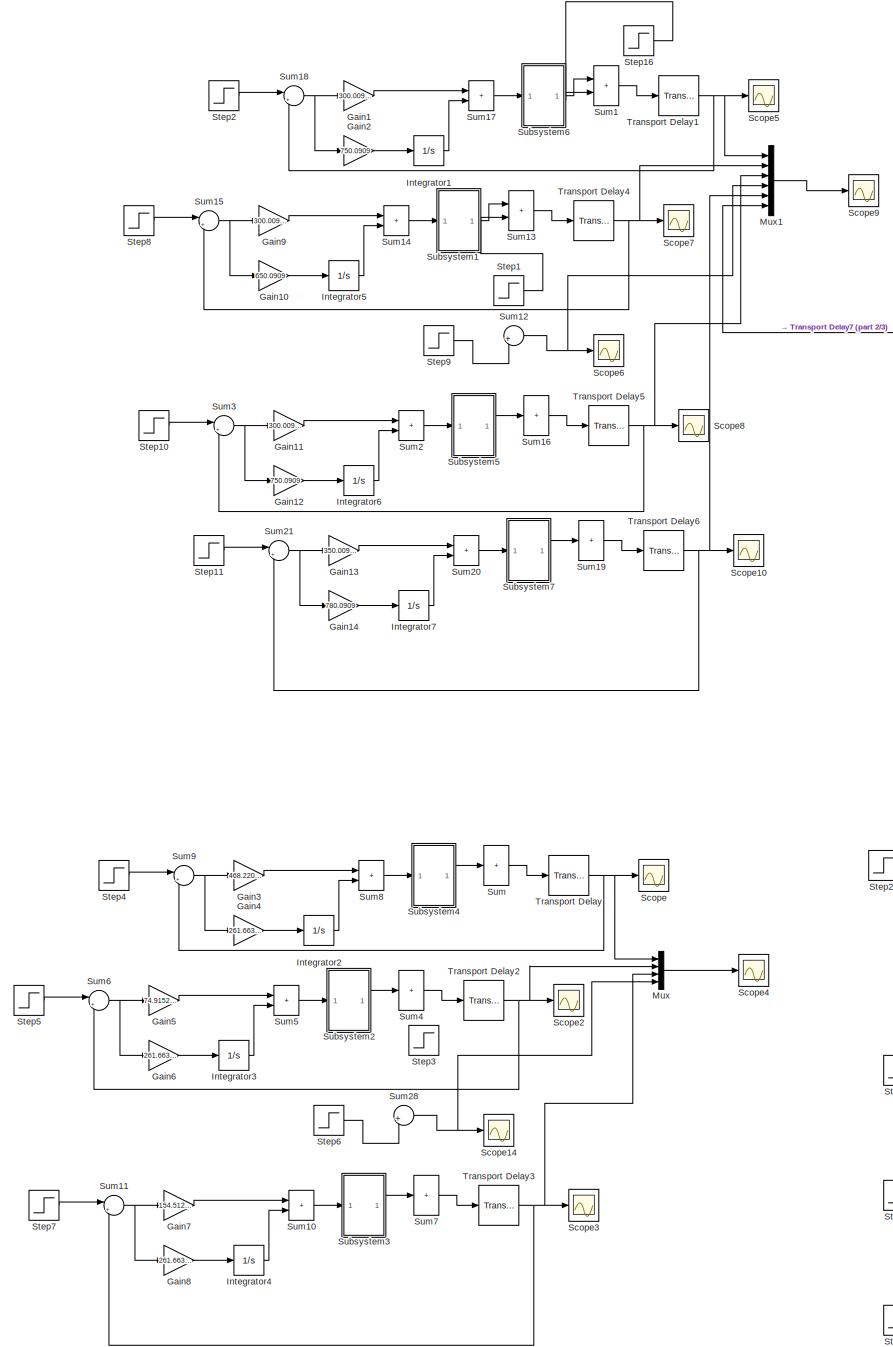
[diagram: root canvas - part 1/3, left side, full height]
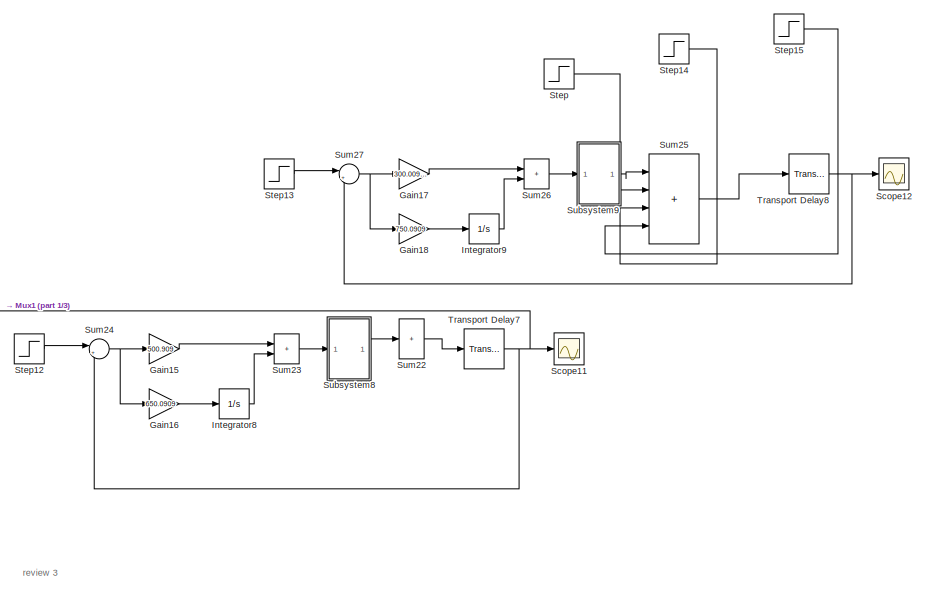
[diagram: root canvas - part 2/3, top right region]
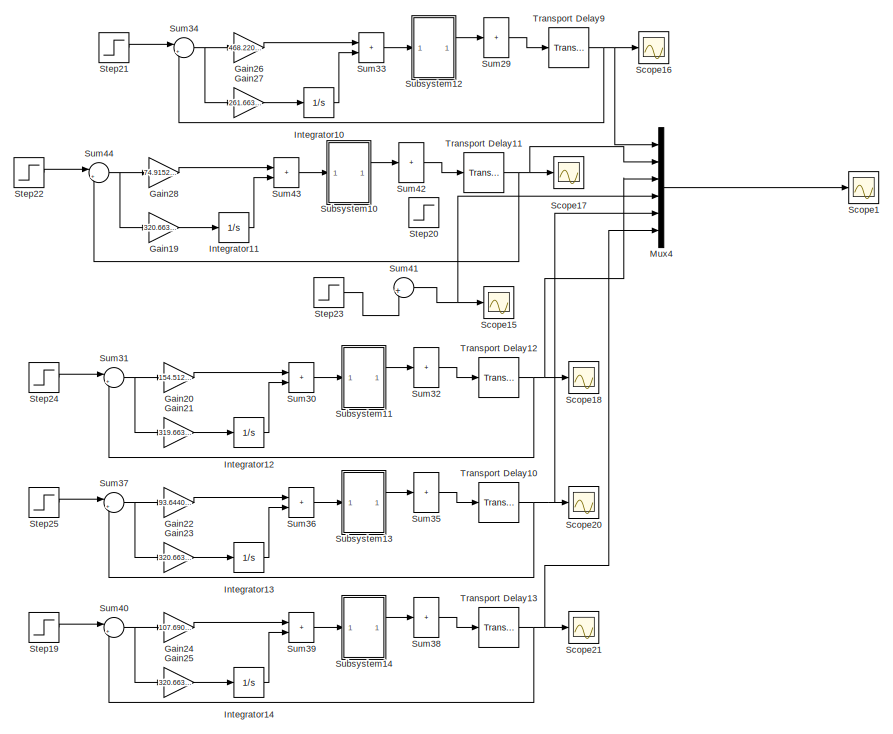
[diagram: root canvas - part 3/3, bottom right region]
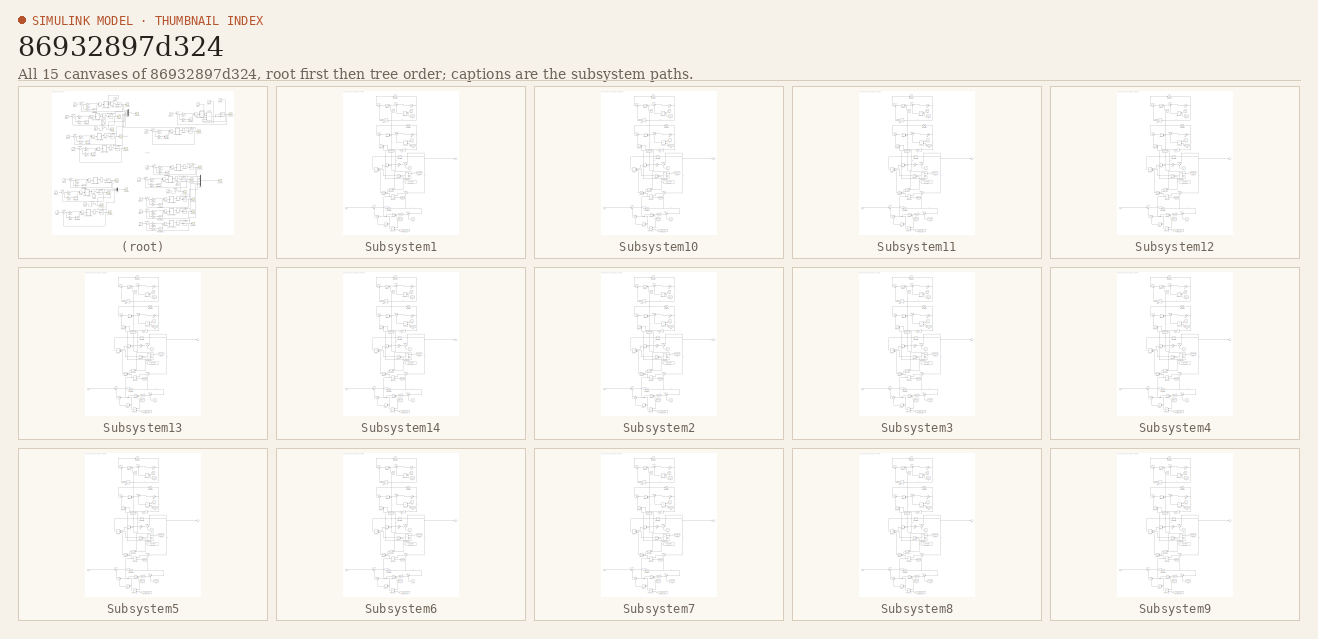
[diagram: thumbnail index - all 15 canvases of the model, root first then tree order]
MODEL slx_86932897d324
KIND model
CONFIG AbsTol = auto
CONFIG EnableMultiTasking = off
CONFIG FixedStep = auto
CONFIG MaxStep = auto
CONFIG MinStep = auto
CONFIG RelTol = 1e-3
CONFIG SampleTimeConstraint = Unconstrained
CONFIG SolverName = VariableStepAuto
CONFIG StartTime = 0.0
CONFIG StopTime = 2500
BLOCK [Gain] Gain1
  Gain = 300.00909
BLOCK [Gain] Gain10
  Gain = 650.0909
BLOCK [Gain] Gain11
  Gain = 300.00909
BLOCK [Gain] Gain12
  Gain = 750.0909
BLOCK [Gain] Gain13
  Gain = 350.00909
BLOCK [Gain] Gain14
  Gain = 780.0909
BLOCK [Gain] Gain15
  Gain = 500.909
BLOCK [Gain] Gain16
  Gain = 650.0909
BLOCK [Gain] Gain17
  Gain = 300.00909
BLOCK [Gain] Gain18
  Gain = 750.0909
BLOCK [Gain] Gain19
  Gain = 320.6639660621
BLOCK [Gain] Gain2
  Gain = 750.0909
BLOCK [Gain] Gain20
  Gain = 154.5127469
BLOCK [Gain] Gain21
  Gain = 319.6639660621
BLOCK [Gain] Gain22
  Gain = 93.64408905
BLOCK [Gain] Gain23
  Gain = 320.6639660621
BLOCK [Gain] Gain24
  Gain = 107.6907024
BLOCK [Gain] Gain25
  Gain = 320.6639660621
BLOCK [Gain] Gain26
  Gain = 468.220445259
BLOCK [Gain] Gain27
  Gain = 261.6639660621
BLOCK [Gain] Gain28
  Gain = 74.91527124
BLOCK [Gain] Gain3
  Gain = 468.220445259
BLOCK [Gain] Gain4
  Gain = 261.6639660621
BLOCK [Gain] Gain5
  Gain = 74.91527124
BLOCK [Gain] Gain6
  Gain = 261.6639660621
BLOCK [Gain] Gain7
  Gain = 154.5127469
BLOCK [Gain] Gain8
  Gain = 261.6639660621
BLOCK [Gain] Gain9
  Gain = 300.00909
BLOCK [Integrator] Integrator1
  Ports = [1, 1]
BLOCK [Integrator] Integrator10
  Ports = [1, 1]
BLOCK [Integrator] Integrator11
  Ports = [1, 1]
BLOCK [Integrator] Integrator12
  Ports = [1, 1]
BLOCK [Integrator] Integrator13
  Ports = [1, 1]
BLOCK [Integrator] Integrator14
  Ports = [1, 1]
BLOCK [Integrator] Integrator2
  Ports = [1, 1]
BLOCK [Integrator] Integrator3
  Ports = [1, 1]
BLOCK [Integrator] Integrator4
  Ports = [1, 1]
BLOCK [Integrator] Integrator5
  Ports = [1, 1]
BLOCK [Integrator] Integrator6
  Ports = [1, 1]
BLOCK [Integrator] Integrator7
  Ports = [1, 1]
BLOCK [Integrator] Integrator8
  Ports = [1, 1]
BLOCK [Integrator] Integrator9
  Ports = [1, 1]
BLOCK [Mux] Mux
  DisplayOption = bar
  Ports = [4, 1]
BLOCK [Mux] Mux1
  DisplayOption = bar
  Inputs = 6
  Ports = [6, 1]
BLOCK [Mux] Mux4
  DisplayOption = bar
  Inputs = 6
  Ports = [6, 1]
BLOCK [Scope] Scope
  Floating = off
  NumInputPorts = 1
  Ports = [1]
  ScopeSpecificationString = Simulink.scopes.TimeScopeBlockCfg('CurrentConfiguration', extmgr.ConfigurationSet(extmgr.Configuration('Core','General UI',true,'FigureColor',[1 1 1]),extmgr.Configuration('Core','Source UI',true),extmgr.Configuration('Sources','WiredSimulink',true,'DataLoggingVariableName','ScopeData1'),extmgr.Configuration('Visuals','Time Domain',true,'SerializedDisplays',{struct('MinYLimReal','413.8806','MaxYLi...<+1585ch>
BLOCK [Scope] Scope1
  Floating = off
  NumInputPorts = 1
  Ports = [1]
  ScopeSpecificationString = Simulink.scopes.TimeScopeBlockCfg('CurrentConfiguration', extmgr.ConfigurationSet(extmgr.Configuration('Core','General UI',true),extmgr.Configuration('Core','Source UI',true),extmgr.Configuration('Sources','WiredSimulink',true,'DataLoggingVariableName','ScopeData1'),extmgr.Configuration('Visuals','Time Domain',true,'SerializedDisplays',{struct('MinYLimReal','417.89941','MaxYLimReal','418.05652','Y...<+1521ch>
BLOCK [Scope] Scope10
  Floating = off
  NumInputPorts = 1
  Ports = [1]
  ScopeSpecificationString = Simulink.scopes.TimeScopeBlockCfg('CurrentConfiguration', extmgr.ConfigurationSet(extmgr.Configuration('Core','General UI',true,'FigureColor',[1 1 1]),extmgr.Configuration('Core','Source UI',true),extmgr.Configuration('Sources','WiredSimulink',true,'DataLoggingVariableName','ScopeData7'),extmgr.Configuration('Visuals','Time Domain',true,'SerializedDisplays',{struct('MinYLimReal','414.5067','MaxYLi...<+1611ch>
BLOCK [Scope] Scope11
  Floating = off
  NumInputPorts = 1
  Ports = [1]
  ScopeSpecificationString = Simulink.scopes.TimeScopeBlockCfg('CurrentConfiguration', extmgr.ConfigurationSet(extmgr.Configuration('Core','General UI',true,'FigureColor',[1 1 1]),extmgr.Configuration('Core','Source UI',true),extmgr.Configuration('Sources','WiredSimulink',true,'DataLoggingVariableName','ScopeData8'),extmgr.Configuration('Visuals','Time Domain',true,'SerializedDisplays',{struct('MinYLimReal','414.52429','MaxYL...<+1615ch>
BLOCK [Scope] Scope12
  Floating = off
  NumInputPorts = 1
  Ports = [1]
  ScopeSpecificationString = Simulink.scopes.TimeScopeBlockCfg('CurrentConfiguration', extmgr.ConfigurationSet(extmgr.Configuration('Core','General UI',true,'FigureColor',[1 1 1]),extmgr.Configuration('Core','Source UI',true),extmgr.Configuration('Sources','WiredSimulink',true,'DataLoggingVariableName','ScopeData1'),extmgr.Configuration('Visuals','Time Domain',true,'SerializedDisplays',{struct('MinYLimReal','414.36426','MaxYL...<+1644ch>
BLOCK [Scope] Scope14
  Floating = off
  NumInputPorts = 1
  Ports = [1]
  ScopeSpecificationString = Simulink.scopes.TimeScopeBlockCfg('CurrentConfiguration', extmgr.ConfigurationSet(extmgr.Configuration('Core','General UI',true),extmgr.Configuration('Core','Source UI',true),extmgr.Configuration('Sources','WiredSimulink',true,'DataLoggingVariableName','ScopeData2'),extmgr.Configuration('Visuals','Time Domain',true,'SerializedDisplays',{struct('MinYLimReal','414.625','MaxYLimReal','418.375','YLabe...<+1362ch>
BLOCK [Scope] Scope15
  Floating = off
  NumInputPorts = 1
  Ports = [1]
  ScopeSpecificationString = Simulink.scopes.TimeScopeBlockCfg('CurrentConfiguration', extmgr.ConfigurationSet(extmgr.Configuration('Core','General UI',true),extmgr.Configuration('Core','Source UI',true),extmgr.Configuration('Sources','WiredSimulink',true,'DataLoggingVariableName','ScopeData4'),extmgr.Configuration('Visuals','Time Domain',true,'SerializedDisplays',{struct('MinYLimReal','414.625','MaxYLimReal','418.375','YLabe...<+1362ch>
BLOCK [Scope] Scope16
  Floating = off
  NumInputPorts = 1
  Ports = [1]
  ScopeSpecificationString = Simulink.scopes.TimeScopeBlockCfg('CurrentConfiguration', extmgr.ConfigurationSet(extmgr.Configuration('Core','General UI',true,'FigureColor',[1 1 1]),extmgr.Configuration('Core','Source UI',true),extmgr.Configuration('Sources','WiredSimulink',true,'DataLoggingVariableName','ScopeData5'),extmgr.Configuration('Visuals','Time Domain',true,'SerializedDisplays',{struct('MinYLimReal','413.8806','MaxYLi...<+1586ch>
BLOCK [Scope] Scope17
  Floating = off
  NumInputPorts = 1
  Ports = [1]
  ScopeSpecificationString = Simulink.scopes.TimeScopeBlockCfg('CurrentConfiguration', extmgr.ConfigurationSet(extmgr.Configuration('Core','General UI',true,'FigureColor',[1 1 1]),extmgr.Configuration('Core','Source UI',true),extmgr.Configuration('Sources','WiredSimulink',true,'DataLoggingVariableName','ScopeData6'),extmgr.Configuration('Visuals','Time Domain',true,'SerializedDisplays',{struct('MinYLimReal','417.72749','MaxYL...<+1591ch>
BLOCK [Scope] Scope18
  Floating = off
  NumInputPorts = 1
  Ports = [1]
  ScopeSpecificationString = Simulink.scopes.TimeScopeBlockCfg('CurrentConfiguration', extmgr.ConfigurationSet(extmgr.Configuration('Core','General UI',true,'FigureColor',[1 1 1]),extmgr.Configuration('Core','Source UI',true),extmgr.Configuration('Sources','WiredSimulink',true,'DataLoggingVariableName','ScopeData7'),extmgr.Configuration('Visuals','Time Domain',true,'SerializedDisplays',{struct('MinYLimReal','414.57572','MaxYL...<+1616ch>
BLOCK [Scope] Scope2
  Floating = off
  NumInputPorts = 1
  Ports = [1]
  ScopeSpecificationString = Simulink.scopes.TimeScopeBlockCfg('CurrentConfiguration', extmgr.ConfigurationSet(extmgr.Configuration('Core','General UI',true,'FigureColor',[1 1 1]),extmgr.Configuration('Core','Source UI',true),extmgr.Configuration('Sources','WiredSimulink',true,'DataLoggingVariableName','ScopeData3'),extmgr.Configuration('Visuals','Time Domain',true,'SerializedDisplays',{struct('MinYLimReal','417.55907','MaxYL...<+1590ch>
BLOCK [Scope] Scope20
  Floating = off
  NumInputPorts = 1
  Ports = [1]
  ScopeSpecificationString = Simulink.scopes.TimeScopeBlockCfg('CurrentConfiguration', extmgr.ConfigurationSet(extmgr.Configuration('Core','General UI',true,'FigureColor',[1 1 1]),extmgr.Configuration('Core','Source UI',true),extmgr.Configuration('Sources','WiredSimulink',true,'DataLoggingVariableName','ScopeData9'),extmgr.Configuration('Visuals','Time Domain',true,'SerializedDisplays',{struct('MinYLimReal','417.85663','MaxYL...<+1616ch>
BLOCK [Scope] Scope21
  Floating = off
  NumInputPorts = 1
  Ports = [1]
  ScopeSpecificationString = Simulink.scopes.TimeScopeBlockCfg('CurrentConfiguration', extmgr.ConfigurationSet(extmgr.Configuration('Core','General UI',true,'FigureColor',[1 1 1]),extmgr.Configuration('Core','Source UI',true),extmgr.Configuration('Sources','WiredSimulink',true,'DataLoggingVariableName','ScopeData10'),extmgr.Configuration('Visuals','Time Domain',true,'SerializedDisplays',{struct('MinYLimReal','413.8806','MaxYL...<+1588ch>
BLOCK [Scope] Scope3
  Floating = off
  NumInputPorts = 1
  Ports = [1]
  ScopeSpecificationString = Simulink.scopes.TimeScopeBlockCfg('CurrentConfiguration', extmgr.ConfigurationSet(extmgr.Configuration('Core','General UI',true,'FigureColor',[1 1 1]),extmgr.Configuration('Core','Source UI',true),extmgr.Configuration('Sources','WiredSimulink',true,'DataLoggingVariableName','ScopeData11'),extmgr.Configuration('Visuals','Time Domain',true,'SerializedDisplays',{struct('MinYLimReal','413.8806','MaxYL...<+1587ch>
BLOCK [Scope] Scope4
  Floating = off
  NumInputPorts = 1
  Ports = [1]
  ScopeSpecificationString = Simulink.scopes.TimeScopeBlockCfg('CurrentConfiguration', extmgr.ConfigurationSet(extmgr.Configuration('Core','General UI',true),extmgr.Configuration('Core','Source UI',true),extmgr.Configuration('Sources','WiredSimulink',true,'DataLoggingVariableName','ScopeData2'),extmgr.Configuration('Visuals','Time Domain',true,'SerializedDisplays',{struct('MinYLimReal','417.99493','MaxYLimReal','418.00735','Y...<+1453ch>
BLOCK [Scope] Scope5
  Floating = off
  NumInputPorts = 1
  Ports = [1]
  ScopeSpecificationString = Simulink.scopes.TimeScopeBlockCfg('CurrentConfiguration', extmgr.ConfigurationSet(extmgr.Configuration('Core','General UI',true,'FigureColor',[1 1 1]),extmgr.Configuration('Core','Source UI',true),extmgr.Configuration('Sources','WiredSimulink',true,'DataLoggingVariableName','ScopeData2'),extmgr.Configuration('Visuals','Time Domain',true,'SerializedDisplays',{struct('MinYLimReal','413.8806','MaxYLi...<+1585ch>
BLOCK [Scope] Scope6
  Floating = off
  NumInputPorts = 1
  Ports = [1]
  ScopeSpecificationString = Simulink.scopes.TimeScopeBlockCfg('CurrentConfiguration', extmgr.ConfigurationSet(extmgr.Configuration('Core','General UI',true),extmgr.Configuration('Core','Source UI',true),extmgr.Configuration('Sources','WiredSimulink',true,'DataLoggingVariableName','ScopeData3'),extmgr.Configuration('Visuals','Time Domain',true,'SerializedDisplays',{struct('MinYLimReal','414.625','MaxYLimReal','418.375','YLabe...<+1362ch>
BLOCK [Scope] Scope7
  Floating = off
  NumInputPorts = 1
  Ports = [1]
  ScopeSpecificationString = Simulink.scopes.TimeScopeBlockCfg('CurrentConfiguration', extmgr.ConfigurationSet(extmgr.Configuration('Core','General UI',true,'FigureColor',[1 1 1]),extmgr.Configuration('Core','Source UI',true),extmgr.Configuration('Sources','WiredSimulink',true,'DataLoggingVariableName','ScopeData4'),extmgr.Configuration('Visuals','Time Domain',true,'SerializedDisplays',{struct('MinYLimReal','414.49943','MaxYL...<+1611ch>
BLOCK [Scope] Scope8
  Floating = off
  NumInputPorts = 1
  Ports = [1]
  ScopeSpecificationString = Simulink.scopes.TimeScopeBlockCfg('CurrentConfiguration', extmgr.ConfigurationSet(extmgr.Configuration('Core','General UI',true,'FigureColor',[1 1 1]),extmgr.Configuration('Core','Source UI',true),extmgr.Configuration('Sources','WiredSimulink',true,'DataLoggingVariableName','ScopeData5'),extmgr.Configuration('Visuals','Time Domain',true,'SerializedDisplays',{struct('MinYLimReal','414.40204','MaxYL...<+1615ch>
BLOCK [Scope] Scope9
  Floating = off
  NumInputPorts = 1
  Ports = [1]
  ScopeSpecificationString = Simulink.scopes.TimeScopeBlockCfg('CurrentConfiguration', extmgr.ConfigurationSet(extmgr.Configuration('Core','General UI',true,'FigureColor',[1 1 1]),extmgr.Configuration('Core','Source UI',true),extmgr.Configuration('Sources','WiredSimulink',true,'DataLoggingVariableName','ScopeData6'),extmgr.Configuration('Visuals','Time Domain',true,'SerializedDisplays',{struct('MinYLimReal','414.49912','MaxYL...<+2176ch>
BLOCK [Step] Step
  After = 0.9
  SampleTime = 0
  Time = 1470
BLOCK [Step] Step1
  After = 0.2
  SampleTime = 0
  Time = 1470
BLOCK [Step] Step10
  After = 418
  Before = 415
  SampleTime = 0
  Time = 70
BLOCK [Step] Step11
  After = 418
  Before = 415
  SampleTime = 0
  Time = 70
BLOCK [Step] Step12
  After = 418
  Before = 415
  SampleTime = 0
  Time = 70
BLOCK [Step] Step13
  After = 418
  Before = 415
  SampleTime = 0
  Time = 70
BLOCK [Step] Step14
  After = -.2
  SampleTime = 0
  Time = 1470
BLOCK [Step] Step15
  After = 0
  SampleTime = 0
  Time = 0
BLOCK [Step] Step16
  After = 0.1
  SampleTime = 0
  Time = 1460
BLOCK [Step] Step19
  After = 418
  Before = 415
  SampleTime = 0
  Time = 70
BLOCK [Step] Step2
  After = 418
  Before = 415
  SampleTime = 0
  Time = 70
BLOCK [Step] Step20
  After = -0.2
  SampleTime = 0
  Time = 400
BLOCK [Step] Step21
  After = 418
  Before = 415
  SampleTime = 0
  Time = 70
BLOCK [Step] Step22
  After = 418
  Before = 415
  SampleTime = 0
  Time = 70
BLOCK [Step] Step23
  After = 418
  Before = 415
  SampleTime = 0
  Time = 70
BLOCK [Step] Step24
  After = 418
  Before = 415
  SampleTime = 0
  Time = 70
BLOCK [Step] Step25
  After = 418
  Before = 415
  SampleTime = 0
  Time = 70
BLOCK [Step] Step3
  After = -0.2
  SampleTime = 0
  Time = 400
BLOCK [Step] Step4
  After = 418
  Before = 415
  SampleTime = 0
  Time = 70
BLOCK [Step] Step5
  After = 418
  Before = 415
  SampleTime = 0
  Time = 70
BLOCK [Step] Step6
  After = 418
  Before = 415
  SampleTime = 0
  Time = 70
BLOCK [Step] Step7
  After = 418
  Before = 415
  SampleTime = 0
  Time = 70
BLOCK [Step] Step8
  After = 418
  Before = 415
  SampleTime = 0
  Time = 70
BLOCK [Step] Step9
  After = 418
  Before = 415
  SampleTime = 0
  Time = 70
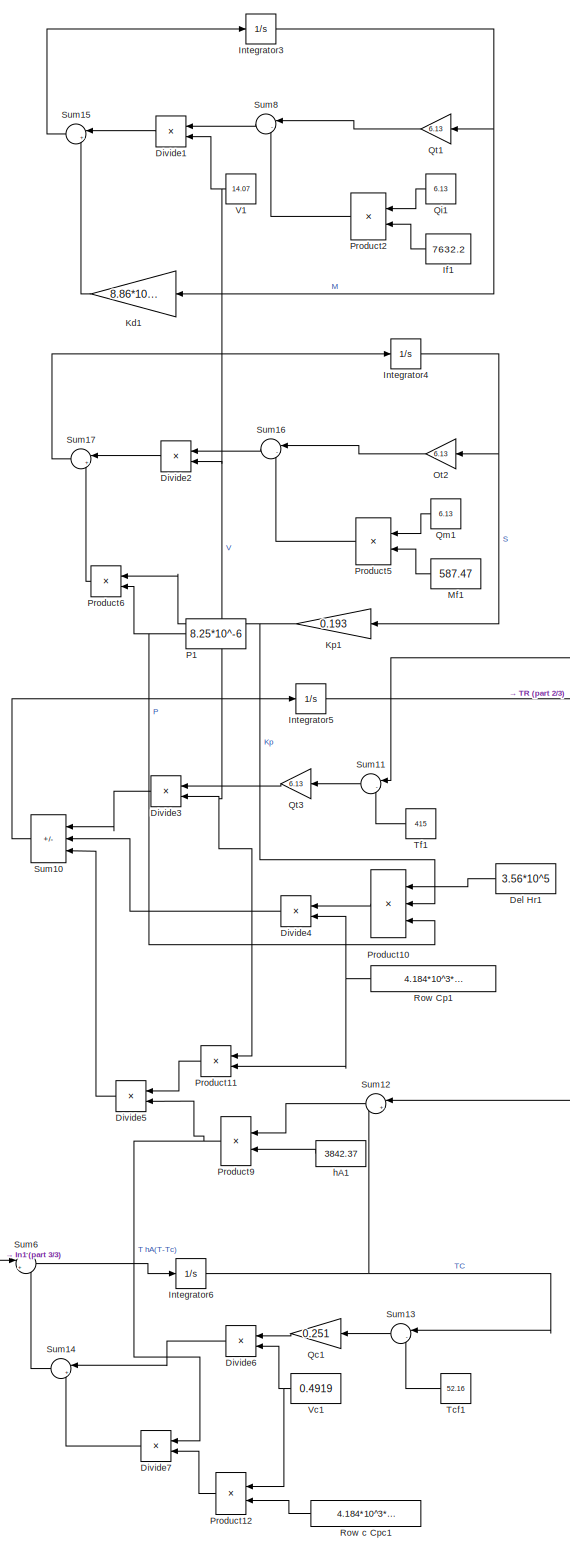
[diagram: Subsystem1 - part 1/3, center side, full height]
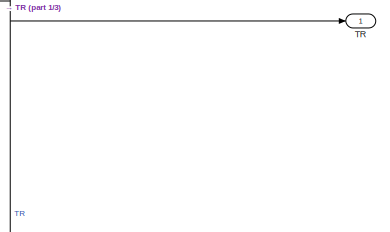
[diagram: Subsystem1 - part 2/3, middle right region]
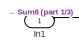
[diagram: Subsystem1 - part 3/3, bottom left region]
BLOCK [SubSystem] Subsystem1
  Ports = [1, 1]
  RequestExecContextInheritance = off
BLOCK [Constant] Subsystem1/Del Hr1
  NameLocation = top
  Value = 3.56*10^5
BLOCK [Product] Subsystem1/Divide1
  Inputs = */
  NameLocation = top
  Ports = [2, 1]
BLOCK [Product] Subsystem1/Divide2
  Inputs = */
  NameLocation = top
  Ports = [2, 1]
BLOCK [Product] Subsystem1/Divide3
  Inputs = */
  NameLocation = top
  Ports = [2, 1]
BLOCK [Product] Subsystem1/Divide4
  Inputs = */
  NameLocation = top
  Ports = [2, 1]
BLOCK [Product] Subsystem1/Divide5
  Inputs = /*
  NameLocation = top
  Ports = [2, 1]
BLOCK [Product] Subsystem1/Divide6
  Inputs = */
  NameLocation = top
  Ports = [2, 1]
BLOCK [Product] Subsystem1/Divide7
  Inputs = */
  NameLocation = top
  Ports = [2, 1]
BLOCK [Constant] Subsystem1/If1
  NameLocation = top
  Value = 7632.2
BLOCK [Inport] Subsystem1/In1
BLOCK [Integrator] Subsystem1/Integrator3
  InitialCondition = 7632.2
  Ports = [1, 1]
BLOCK [Integrator] Subsystem1/Integrator4
  InitialCondition = 587.47
  Ports = [1, 1]
BLOCK [Integrator] Subsystem1/Integrator5
  InitialCondition = 415
  Ports = [1, 1]
BLOCK [Integrator] Subsystem1/Integrator6
  InitialCondition = 326
  Ports = [1, 1]
BLOCK [Gain] Subsystem1/Kd1
  Gain = 8.86*10^-20
  NameLocation = top
BLOCK [Gain] Subsystem1/Kp1
  Gain = 0.193
  NameLocation = top
BLOCK [Constant] Subsystem1/Mf1
  NameLocation = top
  Value = 587.47
BLOCK [Gain] Subsystem1/Ot2
  Gain = 6.13
  NameLocation = top
BLOCK [Constant] Subsystem1/P1
  NameLocation = top
  Value = 8.25*10^-6
BLOCK [Product] Subsystem1/Product10
  Inputs = 3
  NameLocation = top
  Ports = [3, 1]
BLOCK [Product] Subsystem1/Product11
  NameLocation = top
  Ports = [2, 1]
BLOCK [Product] Subsystem1/Product12
  NameLocation = top
  Ports = [2, 1]
BLOCK [Product] Subsystem1/Product2
  NameLocation = top
  Ports = [2, 1]
BLOCK [Product] Subsystem1/Product5
  NameLocation = top
  Ports = [2, 1]
BLOCK [Product] Subsystem1/Product6
  NameLocation = top
  Ports = [2, 1]
BLOCK [Product] Subsystem1/Product9
  NameLocation = top
  Ports = [2, 1]
BLOCK [Gain] Subsystem1/Qc1
  Gain = 0.251
  NameLocation = top
BLOCK [Constant] Subsystem1/Qi1
  NameLocation = top
  Value = 6.13
BLOCK [Constant] Subsystem1/Qm1
  NameLocation = top
  Value = 6.13
BLOCK [Gain] Subsystem1/Qt1
  Gain = 6.13
  NameLocation = top
BLOCK [Gain] Subsystem1/Qt3
  Gain = 6.13
  NameLocation = top
BLOCK [Constant] Subsystem1/Row Cp1
  NameLocation = top
  Value = 4.184*10^3*858.085
BLOCK [Constant] Subsystem1/Row c Cpc1
  NameLocation = top
  Value = 4.184*10^3*858.085
BLOCK [Sum] Subsystem1/Sum10
  IconShape = rectangular
  Inputs = |++-
  NameLocation = top
  Ports = [3, 1]
BLOCK [Sum] Subsystem1/Sum11
  Inputs = |-+
  NameLocation = top
  Ports = [2, 1]
BLOCK [Sum] Subsystem1/Sum12
  Inputs = |+-
  NameLocation = top
  Ports = [2, 1]
BLOCK [Sum] Subsystem1/Sum13
  Inputs = |-+
  NameLocation = top
  Ports = [2, 1]
BLOCK [Sum] Subsystem1/Sum14
  Inputs = |++
  NameLocation = top
  Ports = [2, 1]
BLOCK [Sum] Subsystem1/Sum15
  Inputs = |+-
  NameLocation = top
  Ports = [2, 1]
BLOCK [Sum] Subsystem1/Sum16
  Inputs = |-+
  NameLocation = top
  Ports = [2, 1]
BLOCK [Sum] Subsystem1/Sum17
  Inputs = |+-
  NameLocation = top
  Ports = [2, 1]
BLOCK [Sum] Subsystem1/Sum6
  Inputs = |++
  Ports = [2, 1]
BLOCK [Sum] Subsystem1/Sum8
  Inputs = |-+
  NameLocation = top
  Ports = [2, 1]
BLOCK [Outport] Subsystem1/TR
BLOCK [Constant] Subsystem1/Tcf1
  NameLocation = top
  Value = 52.16
BLOCK [Constant] Subsystem1/Tf1
  NameLocation = top
  Value = 415
BLOCK [Constant] Subsystem1/V1
  NameLocation = top
  Value = 14.07
BLOCK [Constant] Subsystem1/Vc1
  NameLocation = top
  Value = 0.4919
BLOCK [Constant] Subsystem1/hA1
  NameLocation = top
  Value = 3842.37
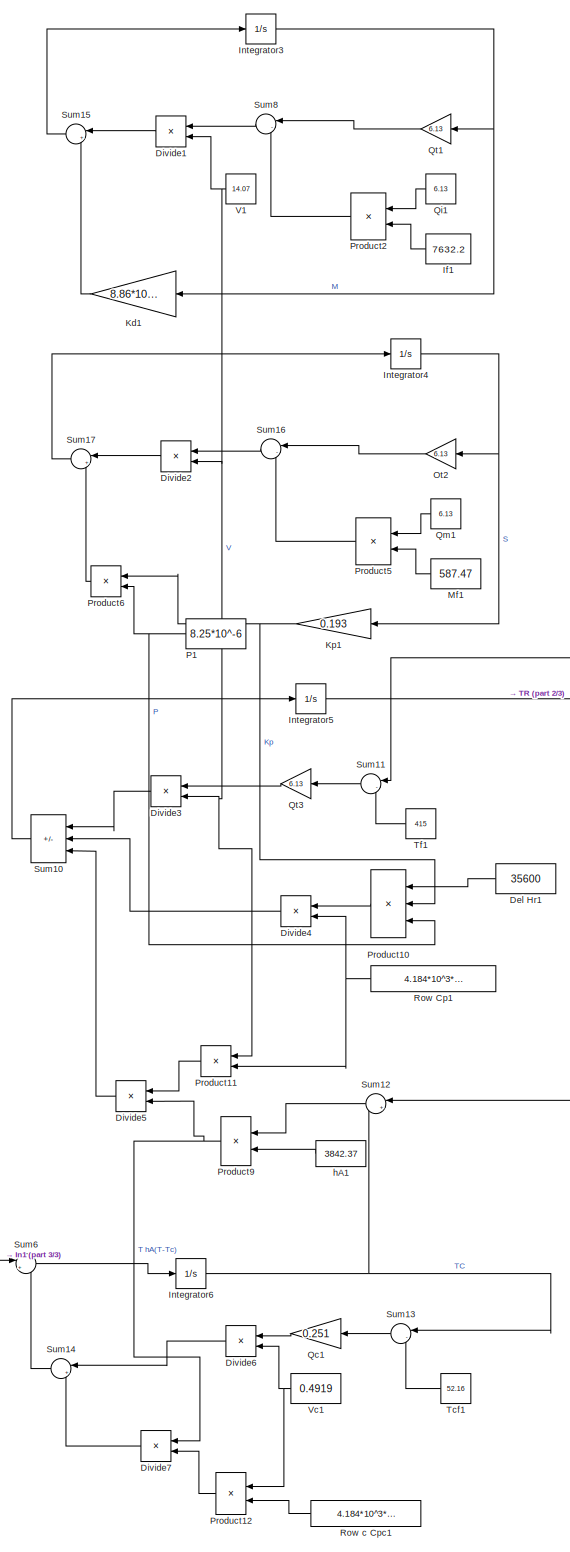
[diagram: Subsystem10 - part 1/3, center side, full height]
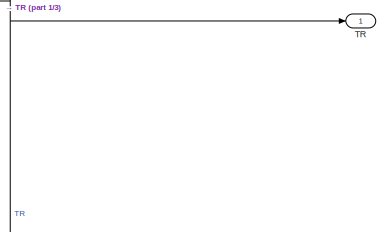
[diagram: Subsystem10 - part 2/3, middle right region]
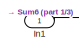
[diagram: Subsystem10 - part 3/3, bottom left region]
BLOCK [SubSystem] Subsystem10
  Ports = [1, 1]
  RequestExecContextInheritance = off
BLOCK [Constant] Subsystem10/Del Hr1
  NameLocation = top
  Value = 35600
BLOCK [Product] Subsystem10/Divide1
  Inputs = */
  NameLocation = top
  Ports = [2, 1]
BLOCK [Product] Subsystem10/Divide2
  Inputs = */
  NameLocation = top
  Ports = [2, 1]
BLOCK [Product] Subsystem10/Divide3
  Inputs = */
  NameLocation = top
  Ports = [2, 1]
BLOCK [Product] Subsystem10/Divide4
  Inputs = */
  NameLocation = top
  Ports = [2, 1]
BLOCK [Product] Subsystem10/Divide5
  Inputs = /*
  NameLocation = top
  Ports = [2, 1]
BLOCK [Product] Subsystem10/Divide6
  Inputs = */
  NameLocation = top
  Ports = [2, 1]
BLOCK [Product] Subsystem10/Divide7
  Inputs = */
  NameLocation = top
  Ports = [2, 1]
BLOCK [Constant] Subsystem10/If1
  NameLocation = top
  Value = 7632.2
BLOCK [Inport] Subsystem10/In1
BLOCK [Integrator] Subsystem10/Integrator3
  InitialCondition = 7632.2
  Ports = [1, 1]
BLOCK [Integrator] Subsystem10/Integrator4
  InitialCondition = 587.47
  Ports = [1, 1]
BLOCK [Integrator] Subsystem10/Integrator5
  InitialCondition = 415
  Ports = [1, 1]
BLOCK [Integrator] Subsystem10/Integrator6
  InitialCondition = 326
  Ports = [1, 1]
BLOCK [Gain] Subsystem10/Kd1
  Gain = 8.86*10^-20
  NameLocation = top
BLOCK [Gain] Subsystem10/Kp1
  Gain = 0.193
  NameLocation = top
BLOCK [Constant] Subsystem10/Mf1
  NameLocation = top
  Value = 587.47
BLOCK [Gain] Subsystem10/Ot2
  Gain = 6.13
  NameLocation = top
BLOCK [Constant] Subsystem10/P1
  NameLocation = top
  Value = 8.25*10^-6
BLOCK [Product] Subsystem10/Product10
  Inputs = 3
  NameLocation = top
  Ports = [3, 1]
BLOCK [Product] Subsystem10/Product11
  NameLocation = top
  Ports = [2, 1]
BLOCK [Product] Subsystem10/Product12
  NameLocation = top
  Ports = [2, 1]
BLOCK [Product] Subsystem10/Product2
  NameLocation = top
  Ports = [2, 1]
BLOCK [Product] Subsystem10/Product5
  NameLocation = top
  Ports = [2, 1]
BLOCK [Product] Subsystem10/Product6
  NameLocation = top
  Ports = [2, 1]
BLOCK [Product] Subsystem10/Product9
  NameLocation = top
  Ports = [2, 1]
BLOCK [Gain] Subsystem10/Qc1
  Gain = 0.251
  NameLocation = top
BLOCK [Constant] Subsystem10/Qi1
  NameLocation = top
  Value = 6.13
BLOCK [Constant] Subsystem10/Qm1
  NameLocation = top
  Value = 6.13
BLOCK [Gain] Subsystem10/Qt1
  Gain = 6.13
  NameLocation = top
BLOCK [Gain] Subsystem10/Qt3
  Gain = 6.13
  NameLocation = top
BLOCK [Constant] Subsystem10/Row Cp1
  NameLocation = top
  Value = 4.184*10^3*858.085
BLOCK [Constant] Subsystem10/Row c Cpc1
  NameLocation = top
  Value = 4.184*10^3*858.085
BLOCK [Sum] Subsystem10/Sum10
  IconShape = rectangular
  Inputs = |++-
  NameLocation = top
  Ports = [3, 1]
BLOCK [Sum] Subsystem10/Sum11
  Inputs = |-+
  NameLocation = top
  Ports = [2, 1]
BLOCK [Sum] Subsystem10/Sum12
  Inputs = |+-
  NameLocation = top
  Ports = [2, 1]
BLOCK [Sum] Subsystem10/Sum13
  Inputs = |-+
  NameLocation = top
  Ports = [2, 1]
BLOCK [Sum] Subsystem10/Sum14
  Inputs = |++
  NameLocation = top
  Ports = [2, 1]
BLOCK [Sum] Subsystem10/Sum15
  Inputs = |+-
  NameLocation = top
  Ports = [2, 1]
BLOCK [Sum] Subsystem10/Sum16
  Inputs = |-+
  NameLocation = top
  Ports = [2, 1]
BLOCK [Sum] Subsystem10/Sum17
  Inputs = |+-
  NameLocation = top
  Ports = [2, 1]
BLOCK [Sum] Subsystem10/Sum6
  Inputs = |++
  Ports = [2, 1]
BLOCK [Sum] Subsystem10/Sum8
  Inputs = |-+
  NameLocation = top
  Ports = [2, 1]
BLOCK [Outport] Subsystem10/TR
BLOCK [Constant] Subsystem10/Tcf1
  NameLocation = top
  Value = 52.16
BLOCK [Constant] Subsystem10/Tf1
  NameLocation = top
  Value = 415
BLOCK [Constant] Subsystem10/V1
  NameLocation = top
  Value = 14.07
BLOCK [Constant] Subsystem10/Vc1
  NameLocation = top
  Value = 0.4919
BLOCK [Constant] Subsystem10/hA1
  NameLocation = top
  Value = 3842.37
BLOCK [SubSystem] Subsystem11
  Ports = [1, 1]
  RequestExecContextInheritance = off
BLOCK [Constant] Subsystem11/Del Hr1
  NameLocation = top
  Value = 53400
BLOCK [Product] Subsystem11/Divide1
  Inputs = */
  NameLocation = top
  Ports = [2, 1]
BLOCK [Product] Subsystem11/Divide2
  Inputs = */
  NameLocation = top
  Ports = [2, 1]
BLOCK [Product] Subsystem11/Divide3
  Inputs = */
  NameLocation = top
  Ports = [2, 1]
BLOCK [Product] Subsystem11/Divide4
  Inputs = */
  NameLocation = top
  Ports = [2, 1]
BLOCK [Product] Subsystem11/Divide5
  Inputs = /*
  NameLocation = top
  Ports = [2, 1]
BLOCK [Product] Subsystem11/Divide6
  Inputs = */
  NameLocation = top
  Ports = [2, 1]
BLOCK [Product] Subsystem11/Divide7
  Inputs = */
  NameLocation = top
  Ports = [2, 1]
BLOCK [Constant] Subsystem11/If1
  NameLocation = top
  Value = 7632.2
BLOCK [Inport] Subsystem11/In1
BLOCK [Integrator] Subsystem11/Integrator3
  InitialCondition = 7632.2
  Ports = [1, 1]
BLOCK [Integrator] Subsystem11/Integrator4
  InitialCondition = 587.47
  Ports = [1, 1]
BLOCK [Integrator] Subsystem11/Integrator5
  InitialCondition = 415
  Ports = [1, 1]
BLOCK [Integrator] Subsystem11/Integrator6
  InitialCondition = 326
  Ports = [1, 1]
BLOCK [Gain] Subsystem11/Kd1
  Gain = 8.86*10^-20
  NameLocation = top
BLOCK [Gain] Subsystem11/Kp1
  Gain = 0.193
  NameLocation = top
BLOCK [Constant] Subsystem11/Mf1
  NameLocation = top
  Value = 587.47
BLOCK [Gain] Subsystem11/Ot2
  Gain = 6.13
  NameLocation = top
BLOCK [Constant] Subsystem11/P1
  NameLocation = top
  Value = 8.25*10^-6
BLOCK [Product] Subsystem11/Product10
  Inputs = 3
  NameLocation = top
  Ports = [3, 1]
BLOCK [Product] Subsystem11/Product11
  NameLocation = top
  Ports = [2, 1]
BLOCK [Product] Subsystem11/Product12
  NameLocation = top
  Ports = [2, 1]
BLOCK [Product] Subsystem11/Product2
  NameLocation = top
  Ports = [2, 1]
BLOCK [Product] Subsystem11/Product5
  NameLocation = top
  Ports = [2, 1]
BLOCK [Product] Subsystem11/Product6
  NameLocation = top
  Ports = [2, 1]
BLOCK [Product] Subsystem11/Product9
  NameLocation = top
  Ports = [2, 1]
BLOCK [Gain] Subsystem11/Qc1
  Gain = 0.251
  NameLocation = top
BLOCK [Constant] Subsystem11/Qi1
  NameLocation = top
  Value = 6.13
BLOCK [Constant] Subsystem11/Qm1
  NameLocation = top
  Value = 6.13
BLOCK [Gain] Subsystem11/Qt1
  Gain = 6.13
  NameLocation = top
BLOCK [Gain] Subsystem11/Qt3
  Gain = 6.13
  NameLocation = top
BLOCK [Constant] Subsystem11/Row Cp1
  NameLocation = top
  Value = 4.184*10^3*858.085
BLOCK [Constant] Subsystem11/Row c Cpc1
  NameLocation = top
  Value = 4.184*10^3*858.085
BLOCK [Sum] Subsystem11/Sum10
  IconShape = rectangular
  Inputs = |++-
  NameLocation = top
  Ports = [3, 1]
BLOCK [Sum] Subsystem11/Sum11
  Inputs = |-+
  NameLocation = top
  Ports = [2, 1]
BLOCK [Sum] Subsystem11/Sum12
  Inputs = |+-
  NameLocation = top
  Ports = [2, 1]
BLOCK [Sum] Subsystem11/Sum13
  Inputs = |-+
  NameLocation = top
  Ports = [2, 1]
BLOCK [Sum] Subsystem11/Sum14
  Inputs = |++
  NameLocation = top
  Ports = [2, 1]
BLOCK [Sum] Subsystem11/Sum15
  Inputs = |+-
  NameLocation = top
  Ports = [2, 1]
BLOCK [Sum] Subsystem11/Sum16
  Inputs = |-+
  NameLocation = top
  Ports = [2, 1]
BLOCK [Sum] Subsystem11/Sum17
  Inputs = |+-
  NameLocation = top
  Ports = [2, 1]
BLOCK [Sum] Subsystem11/Sum6
  Inputs = |++
  Ports = [2, 1]
BLOCK [Sum] Subsystem11/Sum8
  Inputs = |-+
  NameLocation = top
  Ports = [2, 1]
BLOCK [Outport] Subsystem11/TR
BLOCK [Constant] Subsystem11/Tcf1
  NameLocation = top
  Value = 107.58
BLOCK [Constant] Subsystem11/Tf1
  NameLocation = top
  Value = 415
BLOCK [Constant] Subsystem11/V1
  NameLocation = top
  Value = 14.07
BLOCK [Constant] Subsystem11/Vc1
  NameLocation = top
  Value = 0.4919
BLOCK [Constant] Subsystem11/hA1
  NameLocation = top
  Value = 3842.37
BLOCK [SubSystem] Subsystem12
  Ports = [1, 1]
  RequestExecContextInheritance = off
BLOCK [Constant] Subsystem12/Del Hr1
  NameLocation = top
  Value = 3.56*10^5
BLOCK [Product] Subsystem12/Divide1
  Inputs = */
  NameLocation = top
  Ports = [2, 1]
BLOCK [Product] Subsystem12/Divide2
  Inputs = */
  NameLocation = top
  Ports = [2, 1]
BLOCK [Product] Subsystem12/Divide3
  Inputs = */
  NameLocation = top
  Ports = [2, 1]
BLOCK [Product] Subsystem12/Divide4
  Inputs = */
  NameLocation = top
  Ports = [2, 1]
BLOCK [Product] Subsystem12/Divide5
  Inputs = /*
  NameLocation = top
  Ports = [2, 1]
BLOCK [Product] Subsystem12/Divide6
  Inputs = */
  NameLocation = top
  Ports = [2, 1]
BLOCK [Product] Subsystem12/Divide7
  Inputs = */
  NameLocation = top
  Ports = [2, 1]
BLOCK [Constant] Subsystem12/If1
  NameLocation = top
  Value = 7632.2
BLOCK [Inport] Subsystem12/In1
BLOCK [Integrator] Subsystem12/Integrator3
  InitialCondition = 7632.2
  Ports = [1, 1]
BLOCK [Integrator] Subsystem12/Integrator4
  InitialCondition = 587.47
  Ports = [1, 1]
BLOCK [Integrator] Subsystem12/Integrator5
  InitialCondition = 415
  Ports = [1, 1]
BLOCK [Integrator] Subsystem12/Integrator6
  InitialCondition = 326
  Ports = [1, 1]
BLOCK [Gain] Subsystem12/Kd1
  Gain = 8.86*10^-20
  NameLocation = top
BLOCK [Gain] Subsystem12/Kp1
  Gain = 0.193
  NameLocation = top
BLOCK [Constant] Subsystem12/Mf1
  NameLocation = top
  Value = 587.47
BLOCK [Gain] Subsystem12/Ot2
  Gain = 6.13
  NameLocation = top
BLOCK [Constant] Subsystem12/P1
  NameLocation = top
  Value = 8.25*10^-6
BLOCK [Product] Subsystem12/Product10
  Inputs = 3
  NameLocation = top
  Ports = [3, 1]
BLOCK [Product] Subsystem12/Product11
  NameLocation = top
  Ports = [2, 1]
BLOCK [Product] Subsystem12/Product12
  NameLocation = top
  Ports = [2, 1]
BLOCK [Product] Subsystem12/Product2
  NameLocation = top
  Ports = [2, 1]
BLOCK [Product] Subsystem12/Product5
  NameLocation = top
  Ports = [2, 1]
BLOCK [Product] Subsystem12/Product6
  NameLocation = top
  Ports = [2, 1]
BLOCK [Product] Subsystem12/Product9
  NameLocation = top
  Ports = [2, 1]
BLOCK [Gain] Subsystem12/Qc1
  Gain = 0.251
  NameLocation = top
BLOCK [Constant] Subsystem12/Qi1
  NameLocation = top
  Value = 6.13
BLOCK [Constant] Subsystem12/Qm1
  NameLocation = top
  Value = 6.13
BLOCK [Gain] Subsystem12/Qt1
  Gain = 6.13
  NameLocation = top
BLOCK [Gain] Subsystem12/Qt3
  Gain = 6.13
  NameLocation = top
BLOCK [Constant] Subsystem12/Row Cp1
  NameLocation = top
  Value = 4.184*10^3*858.085
BLOCK [Constant] Subsystem12/Row c Cpc1
  NameLocation = top
  Value = 4.184*10^3*858.085
BLOCK [Sum] Subsystem12/Sum10
  IconShape = rectangular
  Inputs = |++-
  NameLocation = top
  Ports = [3, 1]
BLOCK [Sum] Subsystem12/Sum11
  Inputs = |-+
  NameLocation = top
  Ports = [2, 1]
BLOCK [Sum] Subsystem12/Sum12
  Inputs = |+-
  NameLocation = top
  Ports = [2, 1]
BLOCK [Sum] Subsystem12/Sum13
  Inputs = |-+
  NameLocation = top
  Ports = [2, 1]
BLOCK [Sum] Subsystem12/Sum14
  Inputs = |++
  NameLocation = top
  Ports = [2, 1]
BLOCK [Sum] Subsystem12/Sum15
  Inputs = |+-
  NameLocation = top
  Ports = [2, 1]
BLOCK [Sum] Subsystem12/Sum16
  Inputs = |-+
  NameLocation = top
  Ports = [2, 1]
BLOCK [Sum] Subsystem12/Sum17
  Inputs = |+-
  NameLocation = top
  Ports = [2, 1]
BLOCK [Sum] Subsystem12/Sum6
  Inputs = |++
  Ports = [2, 1]
BLOCK [Sum] Subsystem12/Sum8
  Inputs = |-+
  NameLocation = top
  Ports = [2, 1]
BLOCK [Outport] Subsystem12/TR
BLOCK [Constant] Subsystem12/Tcf1
  NameLocation = top
  Value = 326
BLOCK [Constant] Subsystem12/Tf1
  NameLocation = top
  Value = 415
BLOCK [Constant] Subsystem12/V1
  NameLocation = top
  Value = 14.07
BLOCK [Constant] Subsystem12/Vc1
  NameLocation = top
  Value = 0.4919
BLOCK [Constant] Subsystem12/hA1
  NameLocation = top
  Value = 3842.37
BLOCK [SubSystem] Subsystem13
  Ports = [1, 1]
  RequestExecContextInheritance = off
BLOCK [Constant] Subsystem13/Del Hr1
  NameLocation = top
  Value = 71200
BLOCK [Product] Subsystem13/Divide1
  Inputs = */
  NameLocation = top
  Ports = [2, 1]
BLOCK [Product] Subsystem13/Divide2
  Inputs = */
  NameLocation = top
  Ports = [2, 1]
BLOCK [Product] Subsystem13/Divide3
  Inputs = */
  NameLocation = top
  Ports = [2, 1]
BLOCK [Product] Subsystem13/Divide4
  Inputs = */
  NameLocation = top
  Ports = [2, 1]
BLOCK [Product] Subsystem13/Divide5
  Inputs = /*
  NameLocation = top
  Ports = [2, 1]
BLOCK [Product] Subsystem13/Divide6
  Inputs = */
  NameLocation = top
  Ports = [2, 1]
BLOCK [Product] Subsystem13/Divide7
  Inputs = */
  NameLocation = top
  Ports = [2, 1]
BLOCK [Constant] Subsystem13/If1
  NameLocation = top
  Value = 7632.2
BLOCK [Inport] Subsystem13/In1
BLOCK [Integrator] Subsystem13/Integrator3
  InitialCondition = 7632.2
  Ports = [1, 1]
BLOCK [Integrator] Subsystem13/Integrator4
  InitialCondition = 587.47
  Ports = [1, 1]
BLOCK [Integrator] Subsystem13/Integrator5
  InitialCondition = 415
  Ports = [1, 1]
BLOCK [Integrator] Subsystem13/Integrator6
  InitialCondition = 326
  Ports = [1, 1]
BLOCK [Gain] Subsystem13/Kd1
  Gain = 8.86*10^-20
  NameLocation = top
BLOCK [Gain] Subsystem13/Kp1
  Gain = 0.193
  NameLocation = top
BLOCK [Constant] Subsystem13/Mf1
  NameLocation = top
  Value = 587.47
BLOCK [Gain] Subsystem13/Ot2
  Gain = 6.13
  NameLocation = top
BLOCK [Constant] Subsystem13/P1
  NameLocation = top
  Value = 8.25*10^-6
BLOCK [Product] Subsystem13/Product10
  Inputs = 3
  NameLocation = top
  Ports = [3, 1]
BLOCK [Product] Subsystem13/Product11
  NameLocation = top
  Ports = [2, 1]
BLOCK [Product] Subsystem13/Product12
  NameLocation = top
  Ports = [2, 1]
BLOCK [Product] Subsystem13/Product2
  NameLocation = top
  Ports = [2, 1]
BLOCK [Product] Subsystem13/Product5
  NameLocation = top
  Ports = [2, 1]
BLOCK [Product] Subsystem13/Product6
  NameLocation = top
  Ports = [2, 1]
BLOCK [Product] Subsystem13/Product9
  NameLocation = top
  Ports = [2, 1]
BLOCK [Gain] Subsystem13/Qc1
  Gain = 0.251
  NameLocation = top
BLOCK [Constant] Subsystem13/Qi1
  NameLocation = top
  Value = 6.13
BLOCK [Constant] Subsystem13/Qm1
  NameLocation = top
  Value = 6.13
BLOCK [Gain] Subsystem13/Qt1
  Gain = 6.13
  NameLocation = top
BLOCK [Gain] Subsystem13/Qt3
  Gain = 6.13
  NameLocation = top
BLOCK [Constant] Subsystem13/Row Cp1
  NameLocation = top
  Value = 4.184*10^3*858.085
BLOCK [Constant] Subsystem13/Row c Cpc1
  NameLocation = top
  Value = 4.184*10^3*858.085
BLOCK [Sum] Subsystem13/Sum10
  IconShape = rectangular
  Inputs = |++-
  NameLocation = top
  Ports = [3, 1]
BLOCK [Sum] Subsystem13/Sum11
  Inputs = |-+
  NameLocation = top
  Ports = [2, 1]
BLOCK [Sum] Subsystem13/Sum12
  Inputs = |+-
  NameLocation = top
  Ports = [2, 1]
BLOCK [Sum] Subsystem13/Sum13
  Inputs = |-+
  NameLocation = top
  Ports = [2, 1]
BLOCK [Sum] Subsystem13/Sum14
  Inputs = |++
  NameLocation = top
  Ports = [2, 1]
BLOCK [Sum] Subsystem13/Sum15
  Inputs = |+-
  NameLocation = top
  Ports = [2, 1]
BLOCK [Sum] Subsystem13/Sum16
  Inputs = |-+
  NameLocation = top
  Ports = [2, 1]
BLOCK [Sum] Subsystem13/Sum17
  Inputs = |+-
  NameLocation = top
  Ports = [2, 1]
BLOCK [Sum] Subsystem13/Sum6
  Inputs = |++
  Ports = [2, 1]
BLOCK [Sum] Subsystem13/Sum8
  Inputs = |-+
  NameLocation = top
  Ports = [2, 1]
BLOCK [Outport] Subsystem13/TR
BLOCK [Constant] Subsystem13/Tcf1
  NameLocation = top
  Value = 326
BLOCK [Constant] Subsystem13/Tf1
  NameLocation = top
  Value = 415
BLOCK [Constant] Subsystem13/V1
  NameLocation = top
  Value = 14.07
BLOCK [Constant] Subsystem13/Vc1
  NameLocation = top
  Value = 0.4919
BLOCK [Constant] Subsystem13/hA1
  NameLocation = top
  Value = 3842.37
BLOCK [SubSystem] Subsystem14
  Ports = [1, 1]
  RequestExecContextInheritance = off
BLOCK [Constant] Subsystem14/Del Hr1
  NameLocation = top
  Value = 81880
BLOCK [Product] Subsystem14/Divide1
  Inputs = */
  NameLocation = top
  Ports = [2, 1]
BLOCK [Product] Subsystem14/Divide2
  Inputs = */
  NameLocation = top
  Ports = [2, 1]
BLOCK [Product] Subsystem14/Divide3
  Inputs = */
  NameLocation = top
  Ports = [2, 1]
BLOCK [Product] Subsystem14/Divide4
  Inputs = */
  NameLocation = top
  Ports = [2, 1]
BLOCK [Product] Subsystem14/Divide5
  Inputs = /*
  NameLocation = top
  Ports = [2, 1]
BLOCK [Product] Subsystem14/Divide6
  Inputs = */
  NameLocation = top
  Ports = [2, 1]
BLOCK [Product] Subsystem14/Divide7
  Inputs = */
  NameLocation = top
  Ports = [2, 1]
BLOCK [Constant] Subsystem14/If1
  NameLocation = top
  Value = 7632.2
BLOCK [Inport] Subsystem14/In1
BLOCK [Integrator] Subsystem14/Integrator3
  InitialCondition = 7632.2
  Ports = [1, 1]
BLOCK [Integrator] Subsystem14/Integrator4
  InitialCondition = 587.47
  Ports = [1, 1]
BLOCK [Integrator] Subsystem14/Integrator5
  InitialCondition = 415
  Ports = [1, 1]
BLOCK [Integrator] Subsystem14/Integrator6
  InitialCondition = 326
  Ports = [1, 1]
BLOCK [Gain] Subsystem14/Kd1
  Gain = 8.86*10^-20
  NameLocation = top
BLOCK [Gain] Subsystem14/Kp1
  Gain = 0.193
  NameLocation = top
BLOCK [Constant] Subsystem14/Mf1
  NameLocation = top
  Value = 587.47
BLOCK [Gain] Subsystem14/Ot2
  Gain = 6.13
  NameLocation = top
BLOCK [Constant] Subsystem14/P1
  NameLocation = top
  Value = 8.25*10^-6
BLOCK [Product] Subsystem14/Product10
  Inputs = 3
  NameLocation = top
  Ports = [3, 1]
BLOCK [Product] Subsystem14/Product11
  NameLocation = top
  Ports = [2, 1]
BLOCK [Product] Subsystem14/Product12
  NameLocation = top
  Ports = [2, 1]
BLOCK [Product] Subsystem14/Product2
  NameLocation = top
  Ports = [2, 1]
BLOCK [Product] Subsystem14/Product5
  NameLocation = top
  Ports = [2, 1]
BLOCK [Product] Subsystem14/Product6
  NameLocation = top
  Ports = [2, 1]
BLOCK [Product] Subsystem14/Product9
  NameLocation = top
  Ports = [2, 1]
BLOCK [Gain] Subsystem14/Qc1
  Gain = 0.251
  NameLocation = top
BLOCK [Constant] Subsystem14/Qi1
  NameLocation = top
  Value = 6.13
BLOCK [Constant] Subsystem14/Qm1
  NameLocation = top
  Value = 6.13
BLOCK [Gain] Subsystem14/Qt1
  Gain = 6.13
  NameLocation = top
BLOCK [Gain] Subsystem14/Qt3
  Gain = 6.13
  NameLocation = top
BLOCK [Constant] Subsystem14/Row Cp1
  NameLocation = top
  Value = 4.184*10^3*858.085
BLOCK [Constant] Subsystem14/Row c Cpc1
  NameLocation = top
  Value = 4.184*10^3*858.085
BLOCK [Sum] Subsystem14/Sum10
  IconShape = rectangular
  Inputs = |++-
  NameLocation = top
  Ports = [3, 1]
BLOCK [Sum] Subsystem14/Sum11
  Inputs = |-+
  NameLocation = top
  Ports = [2, 1]
BLOCK [Sum] Subsystem14/Sum12
  Inputs = |+-
  NameLocation = top
  Ports = [2, 1]
BLOCK [Sum] Subsystem14/Sum13
  Inputs = |-+
  NameLocation = top
  Ports = [2, 1]
BLOCK [Sum] Subsystem14/Sum14
  Inputs = |++
  NameLocation = top
  Ports = [2, 1]
BLOCK [Sum] Subsystem14/Sum15
  Inputs = |+-
  NameLocation = top
  Ports = [2, 1]
BLOCK [Sum] Subsystem14/Sum16
  Inputs = |-+
  NameLocation = top
  Ports = [2, 1]
BLOCK [Sum] Subsystem14/Sum17
  Inputs = |+-
  NameLocation = top
  Ports = [2, 1]
BLOCK [Sum] Subsystem14/Sum6
  Inputs = |++
  Ports = [2, 1]
BLOCK [Sum] Subsystem14/Sum8
  Inputs = |-+
  NameLocation = top
  Ports = [2, 1]
BLOCK [Outport] Subsystem14/TR
BLOCK [Constant] Subsystem14/Tcf1
  NameLocation = top
  Value = 326
BLOCK [Constant] Subsystem14/Tf1
  NameLocation = top
  Value = 415
BLOCK [Constant] Subsystem14/V1
  NameLocation = top
  Value = 14.07
BLOCK [Constant] Subsystem14/Vc1
  NameLocation = top
  Value = 0.4919
BLOCK [Constant] Subsystem14/hA1
  NameLocation = top
  Value = 3842.37
BLOCK [SubSystem] Subsystem2
  Ports = [1, 1]
  RequestExecContextInheritance = off
BLOCK [Constant] Subsystem2/Del Hr1
  NameLocation = top
  Value = 3.56*10^5
BLOCK [Product] Subsystem2/Divide1
  Inputs = */
  NameLocation = top
  Ports = [2, 1]
BLOCK [Product] Subsystem2/Divide2
  Inputs = */
  NameLocation = top
  Ports = [2, 1]
BLOCK [Product] Subsystem2/Divide3
  Inputs = */
  NameLocation = top
  Ports = [2, 1]
BLOCK [Product] Subsystem2/Divide4
  Inputs = */
  NameLocation = top
  Ports = [2, 1]
BLOCK [Product] Subsystem2/Divide5
  Inputs = /*
  NameLocation = top
  Ports = [2, 1]
BLOCK [Product] Subsystem2/Divide6
  Inputs = */
  NameLocation = top
  Ports = [2, 1]
BLOCK [Product] Subsystem2/Divide7
  Inputs = */
  NameLocation = top
  Ports = [2, 1]
BLOCK [Constant] Subsystem2/If1
  NameLocation = top
  Value = 7632.2
BLOCK [Inport] Subsystem2/In1
BLOCK [Integrator] Subsystem2/Integrator3
  InitialCondition = 7632.2
  Ports = [1, 1]
BLOCK [Integrator] Subsystem2/Integrator4
  InitialCondition = 587.47
  Ports = [1, 1]
BLOCK [Integrator] Subsystem2/Integrator5
  InitialCondition = 415
  Ports = [1, 1]
BLOCK [Integrator] Subsystem2/Integrator6
  InitialCondition = 326
  Ports = [1, 1]
BLOCK [Gain] Subsystem2/Kd1
  Gain = 8.86*10^-20
  NameLocation = top
BLOCK [Gain] Subsystem2/Kp1
  Gain = 0.193
  NameLocation = top
BLOCK [Constant] Subsystem2/Mf1
  NameLocation = top
  Value = 587.47
BLOCK [Gain] Subsystem2/Ot2
  Gain = 6.13
  NameLocation = top
BLOCK [Constant] Subsystem2/P1
  NameLocation = top
  Value = 8.25*10^-6
BLOCK [Product] Subsystem2/Product10
  Inputs = 3
  NameLocation = top
  Ports = [3, 1]
BLOCK [Product] Subsystem2/Product11
  NameLocation = top
  Ports = [2, 1]
BLOCK [Product] Subsystem2/Product12
  NameLocation = top
  Ports = [2, 1]
BLOCK [Product] Subsystem2/Product2
  NameLocation = top
  Ports = [2, 1]
BLOCK [Product] Subsystem2/Product5
  NameLocation = top
  Ports = [2, 1]
BLOCK [Product] Subsystem2/Product6
  NameLocation = top
  Ports = [2, 1]
BLOCK [Product] Subsystem2/Product9
  NameLocation = top
  Ports = [2, 1]
BLOCK [Gain] Subsystem2/Qc1
  Gain = 0.251
  NameLocation = top
BLOCK [Constant] Subsystem2/Qi1
  NameLocation = top
  Value = 6.13
BLOCK [Constant] Subsystem2/Qm1
  NameLocation = top
  Value = 6.13
BLOCK [Gain] Subsystem2/Qt1
  Gain = 6.13
  NameLocation = top
BLOCK [Gain] Subsystem2/Qt3
  Gain = 6.13
  NameLocation = top
BLOCK [Constant] Subsystem2/Row Cp1
  NameLocation = top
  Value = 4.184*10^3*858.085
BLOCK [Constant] Subsystem2/Row c Cpc1
  NameLocation = top
  Value = 4.184*10^3*858.085
BLOCK [Sum] Subsystem2/Sum10
  IconShape = rectangular
  Inputs = |++-
  NameLocation = top
  Ports = [3, 1]
BLOCK [Sum] Subsystem2/Sum11
  Inputs = |-+
  NameLocation = top
  Ports = [2, 1]
BLOCK [Sum] Subsystem2/Sum12
  Inputs = |+-
  NameLocation = top
  Ports = [2, 1]
BLOCK [Sum] Subsystem2/Sum13
  Inputs = |-+
  NameLocation = top
  Ports = [2, 1]
BLOCK [Sum] Subsystem2/Sum14
  Inputs = |++
  NameLocation = top
  Ports = [2, 1]
BLOCK [Sum] Subsystem2/Sum15
  Inputs = |+-
  NameLocation = top
  Ports = [2, 1]
BLOCK [Sum] Subsystem2/Sum16
  Inputs = |-+
  NameLocation = top
  Ports = [2, 1]
BLOCK [Sum] Subsystem2/Sum17
  Inputs = |+-
  NameLocation = top
  Ports = [2, 1]
BLOCK [Sum] Subsystem2/Sum6
  Inputs = |++
  Ports = [2, 1]
BLOCK [Sum] Subsystem2/Sum8
  Inputs = |-+
  NameLocation = top
  Ports = [2, 1]
BLOCK [Outport] Subsystem2/TR
BLOCK [Constant] Subsystem2/Tcf1
  NameLocation = top
  Value = 52.16
BLOCK [Constant] Subsystem2/Tf1
  NameLocation = top
  Value = 415
BLOCK [Constant] Subsystem2/V1
  NameLocation = top
  Value = 14.07
BLOCK [Constant] Subsystem2/Vc1
  NameLocation = top
  Value = 0.4919
BLOCK [Constant] Subsystem2/hA1
  NameLocation = top
  Value = 3842.37
BLOCK [SubSystem] Subsystem3
  Ports = [1, 1]
  RequestExecContextInheritance = off
BLOCK [Constant] Subsystem3/Del Hr1
  NameLocation = top
  Value = 3.56*10^5
BLOCK [Product] Subsystem3/Divide1
  Inputs = */
  NameLocation = top
  Ports = [2, 1]
BLOCK [Product] Subsystem3/Divide2
  Inputs = */
  NameLocation = top
  Ports = [2, 1]
BLOCK [Product] Subsystem3/Divide3
  Inputs = */
  NameLocation = top
  Ports = [2, 1]
BLOCK [Product] Subsystem3/Divide4
  Inputs = */
  NameLocation = top
  Ports = [2, 1]
BLOCK [Product] Subsystem3/Divide5
  Inputs = /*
  NameLocation = top
  Ports = [2, 1]
BLOCK [Product] Subsystem3/Divide6
  Inputs = */
  NameLocation = top
  Ports = [2, 1]
BLOCK [Product] Subsystem3/Divide7
  Inputs = */
  NameLocation = top
  Ports = [2, 1]
BLOCK [Constant] Subsystem3/If1
  NameLocation = top
  Value = 7632.2
BLOCK [Inport] Subsystem3/In1
BLOCK [Integrator] Subsystem3/Integrator3
  InitialCondition = 7632.2
  Ports = [1, 1]
BLOCK [Integrator] Subsystem3/Integrator4
  InitialCondition = 587.47
  Ports = [1, 1]
BLOCK [Integrator] Subsystem3/Integrator5
  InitialCondition = 415
  Ports = [1, 1]
BLOCK [Integrator] Subsystem3/Integrator6
  InitialCondition = 326
  Ports = [1, 1]
BLOCK [Gain] Subsystem3/Kd1
  Gain = 8.86*10^-20
  NameLocation = top
BLOCK [Gain] Subsystem3/Kp1
  Gain = 0.193
  NameLocation = top
BLOCK [Constant] Subsystem3/Mf1
  NameLocation = top
  Value = 587.47
BLOCK [Gain] Subsystem3/Ot2
  Gain = 6.13
  NameLocation = top
BLOCK [Constant] Subsystem3/P1
  NameLocation = top
  Value = 8.25*10^-6
BLOCK [Product] Subsystem3/Product10
  Inputs = 3
  NameLocation = top
  Ports = [3, 1]
BLOCK [Product] Subsystem3/Product11
  NameLocation = top
  Ports = [2, 1]
BLOCK [Product] Subsystem3/Product12
  NameLocation = top
  Ports = [2, 1]
BLOCK [Product] Subsystem3/Product2
  NameLocation = top
  Ports = [2, 1]
BLOCK [Product] Subsystem3/Product5
  NameLocation = top
  Ports = [2, 1]
BLOCK [Product] Subsystem3/Product6
  NameLocation = top
  Ports = [2, 1]
BLOCK [Product] Subsystem3/Product9
  NameLocation = top
  Ports = [2, 1]
BLOCK [Gain] Subsystem3/Qc1
  Gain = 0.251
  NameLocation = top
BLOCK [Constant] Subsystem3/Qi1
  NameLocation = top
  Value = 6.13
BLOCK [Constant] Subsystem3/Qm1
  NameLocation = top
  Value = 6.13
BLOCK [Gain] Subsystem3/Qt1
  Gain = 6.13
  NameLocation = top
BLOCK [Gain] Subsystem3/Qt3
  Gain = 6.13
  NameLocation = top
BLOCK [Constant] Subsystem3/Row Cp1
  NameLocation = top
  Value = 4.184*10^3*858.085
BLOCK [Constant] Subsystem3/Row c Cpc1
  NameLocation = top
  Value = 4.184*10^3*858.085
BLOCK [Sum] Subsystem3/Sum10
  IconShape = rectangular
  Inputs = |++-
  NameLocation = top
  Ports = [3, 1]
BLOCK [Sum] Subsystem3/Sum11
  Inputs = |-+
  NameLocation = top
  Ports = [2, 1]
BLOCK [Sum] Subsystem3/Sum12
  Inputs = |+-
  NameLocation = top
  Ports = [2, 1]
BLOCK [Sum] Subsystem3/Sum13
  Inputs = |-+
  NameLocation = top
  Ports = [2, 1]
BLOCK [Sum] Subsystem3/Sum14
  Inputs = |++
  NameLocation = top
  Ports = [2, 1]
BLOCK [Sum] Subsystem3/Sum15
  Inputs = |+-
  NameLocation = top
  Ports = [2, 1]
BLOCK [Sum] Subsystem3/Sum16
  Inputs = |-+
  NameLocation = top
  Ports = [2, 1]
BLOCK [Sum] Subsystem3/Sum17
  Inputs = |+-
  NameLocation = top
  Ports = [2, 1]
BLOCK [Sum] Subsystem3/Sum6
  Inputs = |++
  Ports = [2, 1]
BLOCK [Sum] Subsystem3/Sum8
  Inputs = |-+
  NameLocation = top
  Ports = [2, 1]
BLOCK [Outport] Subsystem3/TR
BLOCK [Constant] Subsystem3/Tcf1
  NameLocation = top
  Value = 107.58
BLOCK [Constant] Subsystem3/Tf1
  NameLocation = top
  Value = 415
BLOCK [Constant] Subsystem3/V1
  NameLocation = top
  Value = 14.07
BLOCK [Constant] Subsystem3/Vc1
  NameLocation = top
  Value = 0.4919
BLOCK [Constant] Subsystem3/hA1
  NameLocation = top
  Value = 3842.37
BLOCK [SubSystem] Subsystem4
  Ports = [1, 1]
  RequestExecContextInheritance = off
BLOCK [Constant] Subsystem4/Del Hr1
  NameLocation = top
  Value = 3.56*10^5
BLOCK [Product] Subsystem4/Divide1
  Inputs = */
  NameLocation = top
  Ports = [2, 1]
BLOCK [Product] Subsystem4/Divide2
  Inputs = */
  NameLocation = top
  Ports = [2, 1]
BLOCK [Product] Subsystem4/Divide3
  Inputs = */
  NameLocation = top
  Ports = [2, 1]
BLOCK [Product] Subsystem4/Divide4
  Inputs = */
  NameLocation = top
  Ports = [2, 1]
BLOCK [Product] Subsystem4/Divide5
  Inputs = /*
  NameLocation = top
  Ports = [2, 1]
BLOCK [Product] Subsystem4/Divide6
  Inputs = */
  NameLocation = top
  Ports = [2, 1]
BLOCK [Product] Subsystem4/Divide7
  Inputs = */
  NameLocation = top
  Ports = [2, 1]
BLOCK [Constant] Subsystem4/If1
  NameLocation = top
  Value = 7632.2
BLOCK [Inport] Subsystem4/In1
BLOCK [Integrator] Subsystem4/Integrator3
  InitialCondition = 7632.2
  Ports = [1, 1]
BLOCK [Integrator] Subsystem4/Integrator4
  InitialCondition = 587.47
  Ports = [1, 1]
BLOCK [Integrator] Subsystem4/Integrator5
  InitialCondition = 415
  Ports = [1, 1]
BLOCK [Integrator] Subsystem4/Integrator6
  InitialCondition = 326
  Ports = [1, 1]
BLOCK [Gain] Subsystem4/Kd1
  Gain = 8.86*10^-20
  NameLocation = top
BLOCK [Gain] Subsystem4/Kp1
  Gain = 0.193
  NameLocation = top
BLOCK [Constant] Subsystem4/Mf1
  NameLocation = top
  Value = 587.47
BLOCK [Gain] Subsystem4/Ot2
  Gain = 6.13
  NameLocation = top
BLOCK [Constant] Subsystem4/P1
  NameLocation = top
  Value = 8.25*10^-6
BLOCK [Product] Subsystem4/Product10
  Inputs = 3
  NameLocation = top
  Ports = [3, 1]
BLOCK [Product] Subsystem4/Product11
  NameLocation = top
  Ports = [2, 1]
BLOCK [Product] Subsystem4/Product12
  NameLocation = top
  Ports = [2, 1]
BLOCK [Product] Subsystem4/Product2
  NameLocation = top
  Ports = [2, 1]
BLOCK [Product] Subsystem4/Product5
  NameLocation = top
  Ports = [2, 1]
BLOCK [Product] Subsystem4/Product6
  NameLocation = top
  Ports = [2, 1]
BLOCK [Product] Subsystem4/Product9
  NameLocation = top
  Ports = [2, 1]
BLOCK [Gain] Subsystem4/Qc1
  Gain = 0.251
  NameLocation = top
BLOCK [Constant] Subsystem4/Qi1
  NameLocation = top
  Value = 6.13
BLOCK [Constant] Subsystem4/Qm1
  NameLocation = top
  Value = 6.13
BLOCK [Gain] Subsystem4/Qt1
  Gain = 6.13
  NameLocation = top
BLOCK [Gain] Subsystem4/Qt3
  Gain = 6.13
  NameLocation = top
BLOCK [Constant] Subsystem4/Row Cp1
  NameLocation = top
  Value = 4.184*10^3*858.085
BLOCK [Constant] Subsystem4/Row c Cpc1
  NameLocation = top
  Value = 4.184*10^3*858.085
BLOCK [Sum] Subsystem4/Sum10
  IconShape = rectangular
  Inputs = |++-
  NameLocation = top
  Ports = [3, 1]
BLOCK [Sum] Subsystem4/Sum11
  Inputs = |-+
  NameLocation = top
  Ports = [2, 1]
BLOCK [Sum] Subsystem4/Sum12
  Inputs = |+-
  NameLocation = top
  Ports = [2, 1]
BLOCK [Sum] Subsystem4/Sum13
  Inputs = |-+
  NameLocation = top
  Ports = [2, 1]
BLOCK [Sum] Subsystem4/Sum14
  Inputs = |++
  NameLocation = top
  Ports = [2, 1]
BLOCK [Sum] Subsystem4/Sum15
  Inputs = |+-
  NameLocation = top
  Ports = [2, 1]
BLOCK [Sum] Subsystem4/Sum16
  Inputs = |-+
  NameLocation = top
  Ports = [2, 1]
BLOCK [Sum] Subsystem4/Sum17
  Inputs = |+-
  NameLocation = top
  Ports = [2, 1]
BLOCK [Sum] Subsystem4/Sum6
  Inputs = |++
  Ports = [2, 1]
BLOCK [Sum] Subsystem4/Sum8
  Inputs = |-+
  NameLocation = top
  Ports = [2, 1]
BLOCK [Outport] Subsystem4/TR
BLOCK [Constant] Subsystem4/Tcf1
  NameLocation = top
  Value = 326
BLOCK [Constant] Subsystem4/Tf1
  NameLocation = top
  Value = 415
BLOCK [Constant] Subsystem4/V1
  NameLocation = top
  Value = 14.07
BLOCK [Constant] Subsystem4/Vc1
  NameLocation = top
  Value = 0.4919
BLOCK [Constant] Subsystem4/hA1
  NameLocation = top
  Value = 3842.37
BLOCK [SubSystem] Subsystem5
  Ports = [1, 1]
  RequestExecContextInheritance = off
BLOCK [Constant] Subsystem5/Del Hr1
  NameLocation = top
  Value = 3.56*10^5
BLOCK [Product] Subsystem5/Divide1
  Inputs = */
  NameLocation = top
  Ports = [2, 1]
BLOCK [Product] Subsystem5/Divide2
  Inputs = */
  NameLocation = top
  Ports = [2, 1]
BLOCK [Product] Subsystem5/Divide3
  Inputs = */
  NameLocation = top
  Ports = [2, 1]
BLOCK [Product] Subsystem5/Divide4
  Inputs = */
  NameLocation = top
  Ports = [2, 1]
BLOCK [Product] Subsystem5/Divide5
  Inputs = /*
  NameLocation = top
  Ports = [2, 1]
BLOCK [Product] Subsystem5/Divide6
  Inputs = */
  NameLocation = top
  Ports = [2, 1]
BLOCK [Product] Subsystem5/Divide7
  Inputs = */
  NameLocation = top
  Ports = [2, 1]
BLOCK [Constant] Subsystem5/If1
  NameLocation = top
  Value = 7632.2
BLOCK [Inport] Subsystem5/In1
BLOCK [Integrator] Subsystem5/Integrator3
  InitialCondition = 7632.2
  Ports = [1, 1]
BLOCK [Integrator] Subsystem5/Integrator4
  InitialCondition = 587.47
  Ports = [1, 1]
BLOCK [Integrator] Subsystem5/Integrator5
  InitialCondition = 415
  Ports = [1, 1]
BLOCK [Integrator] Subsystem5/Integrator6
  InitialCondition = 326
  Ports = [1, 1]
BLOCK [Gain] Subsystem5/Kd1
  Gain = 8.86*10^-20
  NameLocation = top
BLOCK [Gain] Subsystem5/Kp1
  Gain = 0.193
  NameLocation = top
BLOCK [Constant] Subsystem5/Mf1
  NameLocation = top
  Value = 587.47
BLOCK [Gain] Subsystem5/Ot2
  Gain = 6.13
  NameLocation = top
BLOCK [Constant] Subsystem5/P1
  NameLocation = top
  Value = 8.25*10^-6
BLOCK [Product] Subsystem5/Product10
  Inputs = 3
  NameLocation = top
  Ports = [3, 1]
BLOCK [Product] Subsystem5/Product11
  NameLocation = top
  Ports = [2, 1]
BLOCK [Product] Subsystem5/Product12
  NameLocation = top
  Ports = [2, 1]
BLOCK [Product] Subsystem5/Product2
  NameLocation = top
  Ports = [2, 1]
BLOCK [Product] Subsystem5/Product5
  NameLocation = top
  Ports = [2, 1]
BLOCK [Product] Subsystem5/Product6
  NameLocation = top
  Ports = [2, 1]
BLOCK [Product] Subsystem5/Product9
  NameLocation = top
  Ports = [2, 1]
BLOCK [Gain] Subsystem5/Qc1
  Gain = 0.251
  NameLocation = top
BLOCK [Constant] Subsystem5/Qi1
  NameLocation = top
  Value = 6.13
BLOCK [Constant] Subsystem5/Qm1
  NameLocation = top
  Value = 6.13
BLOCK [Gain] Subsystem5/Qt1
  Gain = 6.13
  NameLocation = top
BLOCK [Gain] Subsystem5/Qt3
  Gain = 6.13
  NameLocation = top
BLOCK [Constant] Subsystem5/Row Cp1
  NameLocation = top
  Value = 4.184*10^3*858.085
BLOCK [Constant] Subsystem5/Row c Cpc1
  NameLocation = top
  Value = 4.184*10^3*858.085
BLOCK [Sum] Subsystem5/Sum10
  IconShape = rectangular
  Inputs = |++-
  NameLocation = top
  Ports = [3, 1]
BLOCK [Sum] Subsystem5/Sum11
  Inputs = |-+
  NameLocation = top
  Ports = [2, 1]
BLOCK [Sum] Subsystem5/Sum12
  Inputs = |+-
  NameLocation = top
  Ports = [2, 1]
BLOCK [Sum] Subsystem5/Sum13
  Inputs = |-+
  NameLocation = top
  Ports = [2, 1]
BLOCK [Sum] Subsystem5/Sum14
  Inputs = |++
  NameLocation = top
  Ports = [2, 1]
BLOCK [Sum] Subsystem5/Sum15
  Inputs = |+-
  NameLocation = top
  Ports = [2, 1]
BLOCK [Sum] Subsystem5/Sum16
  Inputs = |-+
  NameLocation = top
  Ports = [2, 1]
BLOCK [Sum] Subsystem5/Sum17
  Inputs = |+-
  NameLocation = top
  Ports = [2, 1]
BLOCK [Sum] Subsystem5/Sum6
  Inputs = |++
  Ports = [2, 1]
BLOCK [Sum] Subsystem5/Sum8
  Inputs = |-+
  NameLocation = top
  Ports = [2, 1]
BLOCK [Outport] Subsystem5/TR
BLOCK [Constant] Subsystem5/Tcf1
  NameLocation = top
  Value = 107.58
BLOCK [Constant] Subsystem5/Tf1
  NameLocation = top
  Value = 415
BLOCK [Constant] Subsystem5/V1
  NameLocation = top
  Value = 14.07
BLOCK [Constant] Subsystem5/Vc1
  NameLocation = top
  Value = 0.4919
BLOCK [Constant] Subsystem5/hA1
  NameLocation = top
  Value = 3842.37
BLOCK [SubSystem] Subsystem6
  Ports = [1, 1]
  RequestExecContextInheritance = off
BLOCK [Constant] Subsystem6/Del Hr1
  NameLocation = top
  Value = 3.56*10^5
BLOCK [Product] Subsystem6/Divide1
  Inputs = */
  NameLocation = top
  Ports = [2, 1]
BLOCK [Product] Subsystem6/Divide2
  Inputs = */
  NameLocation = top
  Ports = [2, 1]
BLOCK [Product] Subsystem6/Divide3
  Inputs = */
  NameLocation = top
  Ports = [2, 1]
BLOCK [Product] Subsystem6/Divide4
  Inputs = */
  NameLocation = top
  Ports = [2, 1]
BLOCK [Product] Subsystem6/Divide5
  Inputs = /*
  NameLocation = top
  Ports = [2, 1]
BLOCK [Product] Subsystem6/Divide6
  Inputs = */
  NameLocation = top
  Ports = [2, 1]
BLOCK [Product] Subsystem6/Divide7
  Inputs = */
  NameLocation = top
  Ports = [2, 1]
BLOCK [Constant] Subsystem6/If1
  NameLocation = top
  Value = 7632.2
BLOCK [Inport] Subsystem6/In1
BLOCK [Integrator] Subsystem6/Integrator3
  InitialCondition = 7632.2
  Ports = [1, 1]
BLOCK [Integrator] Subsystem6/Integrator4
  InitialCondition = 587.47
  Ports = [1, 1]
BLOCK [Integrator] Subsystem6/Integrator5
  InitialCondition = 415
  Ports = [1, 1]
BLOCK [Integrator] Subsystem6/Integrator6
  InitialCondition = 326
  Ports = [1, 1]
BLOCK [Gain] Subsystem6/Kd1
  Gain = 8.86*10^-20
  NameLocation = top
BLOCK [Gain] Subsystem6/Kp1
  Gain = 0.193
  NameLocation = top
BLOCK [Constant] Subsystem6/Mf1
  NameLocation = top
  Value = 587.47
BLOCK [Gain] Subsystem6/Ot2
  Gain = 6.13
  NameLocation = top
BLOCK [Constant] Subsystem6/P1
  NameLocation = top
  Value = 8.25*10^-6
BLOCK [Product] Subsystem6/Product10
  Inputs = 3
  NameLocation = top
  Ports = [3, 1]
BLOCK [Product] Subsystem6/Product11
  NameLocation = top
  Ports = [2, 1]
BLOCK [Product] Subsystem6/Product12
  NameLocation = top
  Ports = [2, 1]
BLOCK [Product] Subsystem6/Product2
  NameLocation = top
  Ports = [2, 1]
BLOCK [Product] Subsystem6/Product5
  NameLocation = top
  Ports = [2, 1]
BLOCK [Product] Subsystem6/Product6
  NameLocation = top
  Ports = [2, 1]
BLOCK [Product] Subsystem6/Product9
  NameLocation = top
  Ports = [2, 1]
BLOCK [Gain] Subsystem6/Qc1
  Gain = 0.251
  NameLocation = top
BLOCK [Constant] Subsystem6/Qi1
  NameLocation = top
  Value = 6.13
BLOCK [Constant] Subsystem6/Qm1
  NameLocation = top
  Value = 6.13
BLOCK [Gain] Subsystem6/Qt1
  Gain = 6.13
  NameLocation = top
BLOCK [Gain] Subsystem6/Qt3
  Gain = 6.13
  NameLocation = top
BLOCK [Constant] Subsystem6/Row Cp1
  NameLocation = top
  Value = 4.184*10^3*858.085
BLOCK [Constant] Subsystem6/Row c Cpc1
  NameLocation = top
  Value = 4.184*10^3*858.085
BLOCK [Sum] Subsystem6/Sum10
  IconShape = rectangular
  Inputs = |++-
  NameLocation = top
  Ports = [3, 1]
BLOCK [Sum] Subsystem6/Sum11
  Inputs = |-+
  NameLocation = top
  Ports = [2, 1]
BLOCK [Sum] Subsystem6/Sum12
  Inputs = |+-
  NameLocation = top
  Ports = [2, 1]
BLOCK [Sum] Subsystem6/Sum13
  Inputs = |-+
  NameLocation = top
  Ports = [2, 1]
BLOCK [Sum] Subsystem6/Sum14
  Inputs = |++
  NameLocation = top
  Ports = [2, 1]
BLOCK [Sum] Subsystem6/Sum15
  Inputs = |+-
  NameLocation = top
  Ports = [2, 1]
BLOCK [Sum] Subsystem6/Sum16
  Inputs = |-+
  NameLocation = top
  Ports = [2, 1]
BLOCK [Sum] Subsystem6/Sum17
  Inputs = |+-
  NameLocation = top
  Ports = [2, 1]
BLOCK [Sum] Subsystem6/Sum6
  Inputs = |++
  Ports = [2, 1]
BLOCK [Sum] Subsystem6/Sum8
  Inputs = |-+
  NameLocation = top
  Ports = [2, 1]
BLOCK [Outport] Subsystem6/TR
BLOCK [Constant] Subsystem6/Tcf1
  NameLocation = top
  Value = 326
BLOCK [Constant] Subsystem6/Tf1
  NameLocation = top
  Value = 415
BLOCK [Constant] Subsystem6/V1
  NameLocation = top
  Value = 14.07
BLOCK [Constant] Subsystem6/Vc1
  NameLocation = top
  Value = 0.4919
BLOCK [Constant] Subsystem6/hA1
  NameLocation = top
  Value = 3842.37
BLOCK [SubSystem] Subsystem7
  Ports = [1, 1]
  RequestExecContextInheritance = off
BLOCK [Constant] Subsystem7/Del Hr1
  NameLocation = top
  Value = 3.56*10^5
BLOCK [Product] Subsystem7/Divide1
  Inputs = */
  NameLocation = top
  Ports = [2, 1]
BLOCK [Product] Subsystem7/Divide2
  Inputs = */
  NameLocation = top
  Ports = [2, 1]
BLOCK [Product] Subsystem7/Divide3
  Inputs = */
  NameLocation = top
  Ports = [2, 1]
BLOCK [Product] Subsystem7/Divide4
  Inputs = */
  NameLocation = top
  Ports = [2, 1]
BLOCK [Product] Subsystem7/Divide5
  Inputs = /*
  NameLocation = top
  Ports = [2, 1]
BLOCK [Product] Subsystem7/Divide6
  Inputs = */
  NameLocation = top
  Ports = [2, 1]
BLOCK [Product] Subsystem7/Divide7
  Inputs = */
  NameLocation = top
  Ports = [2, 1]
BLOCK [Constant] Subsystem7/If1
  NameLocation = top
  Value = 7632.2
BLOCK [Inport] Subsystem7/In1
BLOCK [Integrator] Subsystem7/Integrator3
  InitialCondition = 7632.2
  Ports = [1, 1]
BLOCK [Integrator] Subsystem7/Integrator4
  InitialCondition = 587.47
  Ports = [1, 1]
BLOCK [Integrator] Subsystem7/Integrator5
  InitialCondition = 415
  Ports = [1, 1]
BLOCK [Integrator] Subsystem7/Integrator6
  InitialCondition = 326
  Ports = [1, 1]
BLOCK [Gain] Subsystem7/Kd1
  Gain = 8.86*10^-20
  NameLocation = top
BLOCK [Gain] Subsystem7/Kp1
  Gain = 0.193
  NameLocation = top
BLOCK [Constant] Subsystem7/Mf1
  NameLocation = top
  Value = 587.47
BLOCK [Gain] Subsystem7/Ot2
  Gain = 6.13
  NameLocation = top
BLOCK [Constant] Subsystem7/P1
  NameLocation = top
  Value = 8.25*10^-6
BLOCK [Product] Subsystem7/Product10
  Inputs = 3
  NameLocation = top
  Ports = [3, 1]
BLOCK [Product] Subsystem7/Product11
  NameLocation = top
  Ports = [2, 1]
BLOCK [Product] Subsystem7/Product12
  NameLocation = top
  Ports = [2, 1]
BLOCK [Product] Subsystem7/Product2
  NameLocation = top
  Ports = [2, 1]
BLOCK [Product] Subsystem7/Product5
  NameLocation = top
  Ports = [2, 1]
BLOCK [Product] Subsystem7/Product6
  NameLocation = top
  Ports = [2, 1]
BLOCK [Product] Subsystem7/Product9
  NameLocation = top
  Ports = [2, 1]
BLOCK [Gain] Subsystem7/Qc1
  Gain = 0.251
  NameLocation = top
BLOCK [Constant] Subsystem7/Qi1
  NameLocation = top
  Value = 6.13
BLOCK [Constant] Subsystem7/Qm1
  NameLocation = top
  Value = 6.13
BLOCK [Gain] Subsystem7/Qt1
  Gain = 6.13
  NameLocation = top
BLOCK [Gain] Subsystem7/Qt3
  Gain = 6.13
  NameLocation = top
BLOCK [Constant] Subsystem7/Row Cp1
  NameLocation = top
  Value = 4.184*10^3*858.085
BLOCK [Constant] Subsystem7/Row c Cpc1
  NameLocation = top
  Value = 4.184*10^3*858.085
BLOCK [Sum] Subsystem7/Sum10
  IconShape = rectangular
  Inputs = |++-
  NameLocation = top
  Ports = [3, 1]
BLOCK [Sum] Subsystem7/Sum11
  Inputs = |-+
  NameLocation = top
  Ports = [2, 1]
BLOCK [Sum] Subsystem7/Sum12
  Inputs = |+-
  NameLocation = top
  Ports = [2, 1]
BLOCK [Sum] Subsystem7/Sum13
  Inputs = |-+
  NameLocation = top
  Ports = [2, 1]
BLOCK [Sum] Subsystem7/Sum14
  Inputs = |++
  NameLocation = top
  Ports = [2, 1]
BLOCK [Sum] Subsystem7/Sum15
  Inputs = |+-
  NameLocation = top
  Ports = [2, 1]
BLOCK [Sum] Subsystem7/Sum16
  Inputs = |-+
  NameLocation = top
  Ports = [2, 1]
BLOCK [Sum] Subsystem7/Sum17
  Inputs = |+-
  NameLocation = top
  Ports = [2, 1]
BLOCK [Sum] Subsystem7/Sum6
  Inputs = |++
  Ports = [2, 1]
BLOCK [Sum] Subsystem7/Sum8
  Inputs = |-+
  NameLocation = top
  Ports = [2, 1]
BLOCK [Outport] Subsystem7/TR
BLOCK [Constant] Subsystem7/Tcf1
  NameLocation = top
  Value = 107.58
BLOCK [Constant] Subsystem7/Tf1
  NameLocation = top
  Value = 415
BLOCK [Constant] Subsystem7/V1
  NameLocation = top
  Value = 14.07
BLOCK [Constant] Subsystem7/Vc1
  NameLocation = top
  Value = 0.4919
BLOCK [Constant] Subsystem7/hA1
  NameLocation = top
  Value = 3842.37
BLOCK [SubSystem] Subsystem8
  Ports = [1, 1]
  RequestExecContextInheritance = off
BLOCK [Constant] Subsystem8/Del Hr1
  NameLocation = top
  Value = 3.56*10^5
BLOCK [Product] Subsystem8/Divide1
  Inputs = */
  NameLocation = top
  Ports = [2, 1]
BLOCK [Product] Subsystem8/Divide2
  Inputs = */
  NameLocation = top
  Ports = [2, 1]
BLOCK [Product] Subsystem8/Divide3
  Inputs = */
  NameLocation = top
  Ports = [2, 1]
BLOCK [Product] Subsystem8/Divide4
  Inputs = */
  NameLocation = top
  Ports = [2, 1]
BLOCK [Product] Subsystem8/Divide5
  Inputs = /*
  NameLocation = top
  Ports = [2, 1]
BLOCK [Product] Subsystem8/Divide6
  Inputs = */
  NameLocation = top
  Ports = [2, 1]
BLOCK [Product] Subsystem8/Divide7
  Inputs = */
  NameLocation = top
  Ports = [2, 1]
BLOCK [Constant] Subsystem8/If1
  NameLocation = top
  Value = 7632.2
BLOCK [Inport] Subsystem8/In1
BLOCK [Integrator] Subsystem8/Integrator3
  InitialCondition = 7632.2
  Ports = [1, 1]
BLOCK [Integrator] Subsystem8/Integrator4
  InitialCondition = 587.47
  Ports = [1, 1]
BLOCK [Integrator] Subsystem8/Integrator5
  InitialCondition = 415
  Ports = [1, 1]
BLOCK [Integrator] Subsystem8/Integrator6
  InitialCondition = 326
  Ports = [1, 1]
BLOCK [Gain] Subsystem8/Kd1
  Gain = 8.86*10^-20
  NameLocation = top
BLOCK [Gain] Subsystem8/Kp1
  Gain = 0.193
  NameLocation = top
BLOCK [Constant] Subsystem8/Mf1
  NameLocation = top
  Value = 587.47
BLOCK [Gain] Subsystem8/Ot2
  Gain = 6.13
  NameLocation = top
BLOCK [Constant] Subsystem8/P1
  NameLocation = top
  Value = 8.25*10^-6
BLOCK [Product] Subsystem8/Product10
  Inputs = 3
  NameLocation = top
  Ports = [3, 1]
BLOCK [Product] Subsystem8/Product11
  NameLocation = top
  Ports = [2, 1]
BLOCK [Product] Subsystem8/Product12
  NameLocation = top
  Ports = [2, 1]
BLOCK [Product] Subsystem8/Product2
  NameLocation = top
  Ports = [2, 1]
BLOCK [Product] Subsystem8/Product5
  NameLocation = top
  Ports = [2, 1]
BLOCK [Product] Subsystem8/Product6
  NameLocation = top
  Ports = [2, 1]
BLOCK [Product] Subsystem8/Product9
  NameLocation = top
  Ports = [2, 1]
BLOCK [Gain] Subsystem8/Qc1
  Gain = 0.251
  NameLocation = top
BLOCK [Constant] Subsystem8/Qi1
  NameLocation = top
  Value = 6.13
BLOCK [Constant] Subsystem8/Qm1
  NameLocation = top
  Value = 6.13
BLOCK [Gain] Subsystem8/Qt1
  Gain = 6.13
  NameLocation = top
BLOCK [Gain] Subsystem8/Qt3
  Gain = 6.13
  NameLocation = top
BLOCK [Constant] Subsystem8/Row Cp1
  NameLocation = top
  Value = 4.184*10^3*858.085
BLOCK [Constant] Subsystem8/Row c Cpc1
  NameLocation = top
  Value = 4.184*10^3*858.085
BLOCK [Sum] Subsystem8/Sum10
  IconShape = rectangular
  Inputs = |++-
  NameLocation = top
  Ports = [3, 1]
BLOCK [Sum] Subsystem8/Sum11
  Inputs = |-+
  NameLocation = top
  Ports = [2, 1]
BLOCK [Sum] Subsystem8/Sum12
  Inputs = |+-
  NameLocation = top
  Ports = [2, 1]
BLOCK [Sum] Subsystem8/Sum13
  Inputs = |-+
  NameLocation = top
  Ports = [2, 1]
BLOCK [Sum] Subsystem8/Sum14
  Inputs = |++
  NameLocation = top
  Ports = [2, 1]
BLOCK [Sum] Subsystem8/Sum15
  Inputs = |+-
  NameLocation = top
  Ports = [2, 1]
BLOCK [Sum] Subsystem8/Sum16
  Inputs = |-+
  NameLocation = top
  Ports = [2, 1]
BLOCK [Sum] Subsystem8/Sum17
  Inputs = |+-
  NameLocation = top
  Ports = [2, 1]
BLOCK [Sum] Subsystem8/Sum6
  Inputs = |++
  Ports = [2, 1]
BLOCK [Sum] Subsystem8/Sum8
  Inputs = |-+
  NameLocation = top
  Ports = [2, 1]
BLOCK [Outport] Subsystem8/TR
BLOCK [Constant] Subsystem8/Tcf1
  NameLocation = top
  Value = 107.58
BLOCK [Constant] Subsystem8/Tf1
  NameLocation = top
  Value = 415
BLOCK [Constant] Subsystem8/V1
  NameLocation = top
  Value = 14.07
BLOCK [Constant] Subsystem8/Vc1
  NameLocation = top
  Value = 0.4919
BLOCK [Constant] Subsystem8/hA1
  NameLocation = top
  Value = 3842.37
BLOCK [SubSystem] Subsystem9
  Ports = [1, 1]
  RequestExecContextInheritance = off
BLOCK [Constant] Subsystem9/Del Hr1
  NameLocation = top
  Value = 3.56*10^5
BLOCK [Product] Subsystem9/Divide1
  Inputs = */
  NameLocation = top
  Ports = [2, 1]
BLOCK [Product] Subsystem9/Divide2
  Inputs = */
  NameLocation = top
  Ports = [2, 1]
BLOCK [Product] Subsystem9/Divide3
  Inputs = */
  NameLocation = top
  Ports = [2, 1]
BLOCK [Product] Subsystem9/Divide4
  Inputs = */
  NameLocation = top
  Ports = [2, 1]
BLOCK [Product] Subsystem9/Divide5
  Inputs = /*
  NameLocation = top
  Ports = [2, 1]
BLOCK [Product] Subsystem9/Divide6
  Inputs = */
  NameLocation = top
  Ports = [2, 1]
BLOCK [Product] Subsystem9/Divide7
  Inputs = */
  NameLocation = top
  Ports = [2, 1]
BLOCK [Constant] Subsystem9/If1
  NameLocation = top
  Value = 7632.2
BLOCK [Inport] Subsystem9/In1
BLOCK [Integrator] Subsystem9/Integrator3
  InitialCondition = 7632.2
  Ports = [1, 1]
BLOCK [Integrator] Subsystem9/Integrator4
  InitialCondition = 587.47
  Ports = [1, 1]
BLOCK [Integrator] Subsystem9/Integrator5
  InitialCondition = 415
  Ports = [1, 1]
BLOCK [Integrator] Subsystem9/Integrator6
  InitialCondition = 326
  Ports = [1, 1]
BLOCK [Gain] Subsystem9/Kd1
  Gain = 8.86*10^-20
  NameLocation = top
BLOCK [Gain] Subsystem9/Kp1
  Gain = 0.193
  NameLocation = top
BLOCK [Constant] Subsystem9/Mf1
  NameLocation = top
  Value = 587.47
BLOCK [Gain] Subsystem9/Ot2
  Gain = 6.13
  NameLocation = top
BLOCK [Constant] Subsystem9/P1
  NameLocation = top
  Value = 8.25*10^-6
BLOCK [Product] Subsystem9/Product10
  Inputs = 3
  NameLocation = top
  Ports = [3, 1]
BLOCK [Product] Subsystem9/Product11
  NameLocation = top
  Ports = [2, 1]
BLOCK [Product] Subsystem9/Product12
  NameLocation = top
  Ports = [2, 1]
BLOCK [Product] Subsystem9/Product2
  NameLocation = top
  Ports = [2, 1]
BLOCK [Product] Subsystem9/Product5
  NameLocation = top
  Ports = [2, 1]
BLOCK [Product] Subsystem9/Product6
  NameLocation = top
  Ports = [2, 1]
BLOCK [Product] Subsystem9/Product9
  NameLocation = top
  Ports = [2, 1]
BLOCK [Gain] Subsystem9/Qc1
  Gain = 0.251
  NameLocation = top
BLOCK [Constant] Subsystem9/Qi1
  NameLocation = top
  Value = 6.13
BLOCK [Constant] Subsystem9/Qm1
  NameLocation = top
  Value = 6.13
BLOCK [Gain] Subsystem9/Qt1
  Gain = 6.13
  NameLocation = top
BLOCK [Gain] Subsystem9/Qt3
  Gain = 6.13
  NameLocation = top
BLOCK [Constant] Subsystem9/Row Cp1
  NameLocation = top
  Value = 4.184*10^3*858.085
BLOCK [Constant] Subsystem9/Row c Cpc1
  NameLocation = top
  Value = 4.184*10^3*858.085
BLOCK [Sum] Subsystem9/Sum10
  IconShape = rectangular
  Inputs = |++-
  NameLocation = top
  Ports = [3, 1]
BLOCK [Sum] Subsystem9/Sum11
  Inputs = |-+
  NameLocation = top
  Ports = [2, 1]
BLOCK [Sum] Subsystem9/Sum12
  Inputs = |+-
  NameLocation = top
  Ports = [2, 1]
BLOCK [Sum] Subsystem9/Sum13
  Inputs = |-+
  NameLocation = top
  Ports = [2, 1]
BLOCK [Sum] Subsystem9/Sum14
  Inputs = |++
  NameLocation = top
  Ports = [2, 1]
BLOCK [Sum] Subsystem9/Sum15
  Inputs = |+-
  NameLocation = top
  Ports = [2, 1]
BLOCK [Sum] Subsystem9/Sum16
  Inputs = |-+
  NameLocation = top
  Ports = [2, 1]
BLOCK [Sum] Subsystem9/Sum17
  Inputs = |+-
  NameLocation = top
  Ports = [2, 1]
BLOCK [Sum] Subsystem9/Sum6
  Inputs = |++
  Ports = [2, 1]
BLOCK [Sum] Subsystem9/Sum8
  Inputs = |-+
  NameLocation = top
  Ports = [2, 1]
BLOCK [Outport] Subsystem9/TR
BLOCK [Constant] Subsystem9/Tcf1
  NameLocation = top
  Value = 107.58
BLOCK [Constant] Subsystem9/Tf1
  NameLocation = top
  Value = 415
BLOCK [Constant] Subsystem9/V1
  NameLocation = top
  Value = 14.07
BLOCK [Constant] Subsystem9/Vc1
  NameLocation = top
  Value = 0.4919
BLOCK [Constant] Subsystem9/hA1
  NameLocation = top
  Value = 3842.37
BLOCK [Sum] Sum
  IconShape = rectangular
  Inputs = |+
  Ports = [1, 1]
BLOCK [Sum] Sum1
  IconShape = rectangular
  Inputs = |++
  Ports = [2, 1]
BLOCK [Sum] Sum10
  IconShape = rectangular
  Inputs = |++
  Ports = [2, 1]
BLOCK [Sum] Sum11
  Inputs = |+-
  Ports = [2, 1]
BLOCK [Sum] Sum12
  Inputs = |+
  Ports = [1, 1]
BLOCK [Sum] Sum13
  IconShape = rectangular
  Inputs = |++
  Ports = [2, 1]
BLOCK [Sum] Sum14
  IconShape = rectangular
  Inputs = |++
  Ports = [2, 1]
BLOCK [Sum] Sum15
  Inputs = |+-
  Ports = [2, 1]
BLOCK [Sum] Sum16
  IconShape = rectangular
  Inputs = |+
  Ports = [1, 1]
BLOCK [Sum] Sum17
  IconShape = rectangular
  Inputs = |++
  Ports = [2, 1]
BLOCK [Sum] Sum18
  Inputs = |+-
  Ports = [2, 1]
BLOCK [Sum] Sum19
  IconShape = rectangular
  Inputs = |+
  Ports = [1, 1]
BLOCK [Sum] Sum2
  IconShape = rectangular
  Inputs = |++
  Ports = [2, 1]
BLOCK [Sum] Sum20
  IconShape = rectangular
  Inputs = |++
  Ports = [2, 1]
BLOCK [Sum] Sum21
  Inputs = |+-
  Ports = [2, 1]
BLOCK [Sum] Sum22
  IconShape = rectangular
  Inputs = |+
  Ports = [1, 1]
BLOCK [Sum] Sum23
  IconShape = rectangular
  Inputs = |++
  Ports = [2, 1]
BLOCK [Sum] Sum24
  Inputs = |+-
  Ports = [2, 1]
BLOCK [Sum] Sum25
  IconShape = rectangular
  Inputs = |++++
  Ports = [4, 1]
BLOCK [Sum] Sum26
  IconShape = rectangular
  Inputs = |++
  Ports = [2, 1]
BLOCK [Sum] Sum27
  Inputs = |+-
  Ports = [2, 1]
BLOCK [Sum] Sum28
  Inputs = |+
  Ports = [1, 1]
BLOCK [Sum] Sum29
  IconShape = rectangular
  Inputs = |+
  Ports = [1, 1]
BLOCK [Sum] Sum3
  Inputs = |+-
  Ports = [2, 1]
BLOCK [Sum] Sum30
  IconShape = rectangular
  Inputs = |++
  Ports = [2, 1]
BLOCK [Sum] Sum31
  Inputs = |+-
  Ports = [2, 1]
BLOCK [Sum] Sum32
  IconShape = rectangular
  Inputs = |+
  Ports = [1, 1]
BLOCK [Sum] Sum33
  IconShape = rectangular
  Inputs = |++
  Ports = [2, 1]
BLOCK [Sum] Sum34
  Inputs = |+-
  Ports = [2, 1]
BLOCK [Sum] Sum35
  IconShape = rectangular
  Inputs = |+
  Ports = [1, 1]
BLOCK [Sum] Sum36
  IconShape = rectangular
  Inputs = |++
  Ports = [2, 1]
BLOCK [Sum] Sum37
  Inputs = |+-
  Ports = [2, 1]
BLOCK [Sum] Sum38
  IconShape = rectangular
  Inputs = |+
  Ports = [1, 1]
BLOCK [Sum] Sum39
  IconShape = rectangular
  Inputs = |++
  Ports = [2, 1]
BLOCK [Sum] Sum4
  IconShape = rectangular
  Inputs = |+
  Ports = [1, 1]
BLOCK [Sum] Sum40
  Inputs = |+-
  Ports = [2, 1]
BLOCK [Sum] Sum41
  Inputs = |+
  Ports = [1, 1]
BLOCK [Sum] Sum42
  IconShape = rectangular
  Inputs = |+
  Ports = [1, 1]
BLOCK [Sum] Sum43
  IconShape = rectangular
  Inputs = |++
  Ports = [2, 1]
BLOCK [Sum] Sum44
  Inputs = |+-
  Ports = [2, 1]
BLOCK [Sum] Sum5
  IconShape = rectangular
  Inputs = |++
  Ports = [2, 1]
BLOCK [Sum] Sum6
  Inputs = |+-
  Ports = [2, 1]
BLOCK [Sum] Sum7
  IconShape = rectangular
  Inputs = |+
  Ports = [1, 1]
BLOCK [Sum] Sum8
  IconShape = rectangular
  Inputs = |++
  Ports = [2, 1]
BLOCK [Sum] Sum9
  Inputs = |+-
  Ports = [2, 1]
BLOCK [TransportDelay] Transport Delay
  DelayTime = 0
  Ports = [1, 1]
BLOCK [TransportDelay] Transport Delay1
  DelayTime = 0
  Ports = [1, 1]
BLOCK [TransportDelay] Transport Delay10
  DelayTime = 0
  Ports = [1, 1]
BLOCK [TransportDelay] Transport Delay11
  DelayTime = 0
  Ports = [1, 1]
BLOCK [TransportDelay] Transport Delay12
  DelayTime = 0
  Ports = [1, 1]
BLOCK [TransportDelay] Transport Delay13
  DelayTime = 0
  Ports = [1, 1]
BLOCK [TransportDelay] Transport Delay2
  DelayTime = 0
  Ports = [1, 1]
BLOCK [TransportDelay] Transport Delay3
  DelayTime = 0
  Ports = [1, 1]
BLOCK [TransportDelay] Transport Delay4
  DelayTime = 0
  Ports = [1, 1]
BLOCK [TransportDelay] Transport Delay5
  DelayTime = 0
  Ports = [1, 1]
BLOCK [TransportDelay] Transport Delay6
  DelayTime = 0
  Ports = [1, 1]
BLOCK [TransportDelay] Transport Delay7
  DelayTime = 0
  Ports = [1, 1]
BLOCK [TransportDelay] Transport Delay8
  DelayTime = 0
  Ports = [1, 1]
BLOCK [TransportDelay] Transport Delay9
  DelayTime = 0
  Ports = [1, 1]
ANNOTATION (root): review 3
LINE Gain10:1 -> Integrator5:1
LINE Gain11:1 -> Sum2:1
LINE Gain12:1 -> Integrator6:1
LINE Gain13:1 -> Sum20:1
LINE Gain14:1 -> Integrator7:1
LINE Gain15:1 -> Sum23:1
LINE Gain16:1 -> Integrator8:1
LINE Gain17:1 -> Sum26:1
LINE Gain18:1 -> Integrator9:1
LINE Gain19:1 -> Integrator11:1
LINE Gain1:1 -> Sum17:1
LINE Gain20:1 -> Sum30:1
LINE Gain21:1 -> Integrator12:1
LINE Gain22:1 -> Sum36:1
LINE Gain23:1 -> Integrator13:1
LINE Gain24:1 -> Sum39:1
LINE Gain25:1 -> Integrator14:1
LINE Gain26:1 -> Sum33:1
LINE Gain27:1 -> Integrator10:1
LINE Gain28:1 -> Sum43:1
LINE Gain2:1 -> Integrator1:1
LINE Gain3:1 -> Sum8:1
LINE Gain4:1 -> Integrator2:1
LINE Gain5:1 -> Sum5:1
LINE Gain6:1 -> Integrator3:1
LINE Gain7:1 -> Sum10:1
LINE Gain8:1 -> Integrator4:1
LINE Gain9:1 -> Sum14:1
LINE Integrator10:1 -> Sum33:2
LINE Integrator11:1 -> Sum43:2
LINE Integrator12:1 -> Sum30:2
LINE Integrator13:1 -> Sum36:2
LINE Integrator14:1 -> Sum39:2
LINE Integrator1:1 -> Sum17:2
LINE Integrator2:1 -> Sum8:2
LINE Integrator3:1 -> Sum5:2
LINE Integrator4:1 -> Sum10:2
LINE Integrator5:1 -> Sum14:2
LINE Integrator6:1 -> Sum2:2
LINE Integrator7:1 -> Sum20:2
LINE Integrator8:1 -> Sum23:2
LINE Integrator9:1 -> Sum26:2
LINE Mux1:1 -> Scope9:1
LINE Mux4:1 -> Scope1:1
LINE Mux:1 -> Scope4:1
LINE Step10:1 -> Sum3:1
LINE Step11:1 -> Sum21:1
LINE Step12:1 -> Sum24:1
LINE Step13:1 -> Sum27:1
LINE Step14:1 -> Sum25:3
LINE Step15:1 -> Sum25:4
LINE Step16:1 -> Sum1:2
LINE Step19:1 -> Sum40:1
LINE Step1:1 -> Sum13:2
LINE Step21:1 -> Sum34:1
LINE Step22:1 -> Sum44:1
LINE Step23:1 -> Sum41:1
LINE Step24:1 -> Sum31:1
LINE Step25:1 -> Sum37:1
LINE Step2:1 -> Sum18:1
LINE Step4:1 -> Sum9:1
LINE Step5:1 -> Sum6:1
LINE Step6:1 -> Sum28:1
LINE Step7:1 -> Sum11:1
LINE Step8:1 -> Sum15:1
LINE Step9:1 -> Sum12:1
LINE Step:1 -> Sum25:2
LINE Subsystem1/Del Hr1:1 -> Subsystem1/Product10:1
LINE Subsystem1/Divide1:1 -> Subsystem1/Sum15:1
LINE Subsystem1/Divide2:1 -> Subsystem1/Sum17:1
LINE Subsystem1/Divide3:1 -> Subsystem1/Sum10:1
LINE Subsystem1/Divide4:1 -> Subsystem1/Sum10:2
LINE Subsystem1/Divide5:1 -> Subsystem1/Sum10:3
LINE Subsystem1/Divide6:1 -> Subsystem1/Sum14:1
LINE Subsystem1/Divide7:1 -> Subsystem1/Sum14:2
LINE Subsystem1/If1:1 -> Subsystem1/Product2:2
LINE Subsystem1/In1:1 -> Subsystem1/Sum6:1
NET Subsystem1/Integrator3:1 -> Subsystem1/Kd1:1, Subsystem1/Qt1:1
NET Subsystem1/Integrator4:1 -> Subsystem1/Kp1:1, Subsystem1/Ot2:1
NET Subsystem1/Integrator5:1 -> Subsystem1/Sum11:1, Subsystem1/Sum12:1, Subsystem1/TR:1
NET Subsystem1/Integrator6:1 -> Subsystem1/Sum12:2, Subsystem1/Sum13:1
LINE Subsystem1/Kd1:1 -> Subsystem1/Sum15:2
NET Subsystem1/Kp1:1 -> Subsystem1/Product10:2, Subsystem1/Product6:1
LINE Subsystem1/Mf1:1 -> Subsystem1/Product5:2
LINE Subsystem1/Ot2:1 -> Subsystem1/Sum16:1
NET Subsystem1/P1:1 -> Subsystem1/Product10:3, Subsystem1/Product6:2
LINE Subsystem1/Product10:1 -> Subsystem1/Divide4:1
LINE Subsystem1/Product11:1 -> Subsystem1/Divide5:1
LINE Subsystem1/Product12:1 -> Subsystem1/Divide7:2
LINE Subsystem1/Product2:1 -> Subsystem1/Sum8:2
LINE Subsystem1/Product5:1 -> Subsystem1/Sum16:2
LINE Subsystem1/Product6:1 -> Subsystem1/Sum17:2
NET Subsystem1/Product9:1 -> Subsystem1/Divide5:2, Subsystem1/Divide7:1
LINE Subsystem1/Qc1:1 -> Subsystem1/Divide6:1
LINE Subsystem1/Qi1:1 -> Subsystem1/Product2:1
LINE Subsystem1/Qm1:1 -> Subsystem1/Product5:1
LINE Subsystem1/Qt1:1 -> Subsystem1/Sum8:1
LINE Subsystem1/Qt3:1 -> Subsystem1/Divide3:1
NET Subsystem1/Row Cp1:1 -> Subsystem1/Divide4:2, Subsystem1/Product11:2
LINE Subsystem1/Row c Cpc1:1 -> Subsystem1/Product12:2
LINE Subsystem1/Sum10:1 -> Subsystem1/Integrator5:1
LINE Subsystem1/Sum11:1 -> Subsystem1/Qt3:1
LINE Subsystem1/Sum12:1 -> Subsystem1/Product9:1
LINE Subsystem1/Sum13:1 -> Subsystem1/Qc1:1
LINE Subsystem1/Sum14:1 -> Subsystem1/Sum6:2
LINE Subsystem1/Sum15:1 -> Subsystem1/Integrator3:1
LINE Subsystem1/Sum16:1 -> Subsystem1/Divide2:1
LINE Subsystem1/Sum17:1 -> Subsystem1/Integrator4:1
LINE Subsystem1/Sum6:1 -> Subsystem1/Integrator6:1
LINE Subsystem1/Sum8:1 -> Subsystem1/Divide1:1
LINE Subsystem1/Tcf1:1 -> Subsystem1/Sum13:2
LINE Subsystem1/Tf1:1 -> Subsystem1/Sum11:2
NET Subsystem1/V1:1 -> Subsystem1/Divide1:2, Subsystem1/Divide2:2, Subsystem1/Divide3:2, Subsystem1/Product11:1
NET Subsystem1/Vc1:1 -> Subsystem1/Divide6:2, Subsystem1/Product12:1
LINE Subsystem1/hA1:1 -> Subsystem1/Product9:2
LINE Subsystem10/Del Hr1:1 -> Subsystem10/Product10:1
LINE Subsystem10/Divide1:1 -> Subsystem10/Sum15:1
LINE Subsystem10/Divide2:1 -> Subsystem10/Sum17:1
LINE Subsystem10/Divide3:1 -> Subsystem10/Sum10:1
LINE Subsystem10/Divide4:1 -> Subsystem10/Sum10:2
LINE Subsystem10/Divide5:1 -> Subsystem10/Sum10:3
LINE Subsystem10/Divide6:1 -> Subsystem10/Sum14:1
LINE Subsystem10/Divide7:1 -> Subsystem10/Sum14:2
LINE Subsystem10/If1:1 -> Subsystem10/Product2:2
LINE Subsystem10/In1:1 -> Subsystem10/Sum6:1
NET Subsystem10/Integrator3:1 -> Subsystem10/Kd1:1, Subsystem10/Qt1:1
NET Subsystem10/Integrator4:1 -> Subsystem10/Kp1:1, Subsystem10/Ot2:1
NET Subsystem10/Integrator5:1 -> Subsystem10/Sum11:1, Subsystem10/Sum12:1, Subsystem10/TR:1
NET Subsystem10/Integrator6:1 -> Subsystem10/Sum12:2, Subsystem10/Sum13:1
LINE Subsystem10/Kd1:1 -> Subsystem10/Sum15:2
NET Subsystem10/Kp1:1 -> Subsystem10/Product10:2, Subsystem10/Product6:1
LINE Subsystem10/Mf1:1 -> Subsystem10/Product5:2
LINE Subsystem10/Ot2:1 -> Subsystem10/Sum16:1
NET Subsystem10/P1:1 -> Subsystem10/Product10:3, Subsystem10/Product6:2
LINE Subsystem10/Product10:1 -> Subsystem10/Divide4:1
LINE Subsystem10/Product11:1 -> Subsystem10/Divide5:1
LINE Subsystem10/Product12:1 -> Subsystem10/Divide7:2
LINE Subsystem10/Product2:1 -> Subsystem10/Sum8:2
LINE Subsystem10/Product5:1 -> Subsystem10/Sum16:2
LINE Subsystem10/Product6:1 -> Subsystem10/Sum17:2
NET Subsystem10/Product9:1 -> Subsystem10/Divide5:2, Subsystem10/Divide7:1
LINE Subsystem10/Qc1:1 -> Subsystem10/Divide6:1
LINE Subsystem10/Qi1:1 -> Subsystem10/Product2:1
LINE Subsystem10/Qm1:1 -> Subsystem10/Product5:1
LINE Subsystem10/Qt1:1 -> Subsystem10/Sum8:1
LINE Subsystem10/Qt3:1 -> Subsystem10/Divide3:1
NET Subsystem10/Row Cp1:1 -> Subsystem10/Divide4:2, Subsystem10/Product11:2
LINE Subsystem10/Row c Cpc1:1 -> Subsystem10/Product12:2
LINE Subsystem10/Sum10:1 -> Subsystem10/Integrator5:1
LINE Subsystem10/Sum11:1 -> Subsystem10/Qt3:1
LINE Subsystem10/Sum12:1 -> Subsystem10/Product9:1
LINE Subsystem10/Sum13:1 -> Subsystem10/Qc1:1
LINE Subsystem10/Sum14:1 -> Subsystem10/Sum6:2
LINE Subsystem10/Sum15:1 -> Subsystem10/Integrator3:1
LINE Subsystem10/Sum16:1 -> Subsystem10/Divide2:1
LINE Subsystem10/Sum17:1 -> Subsystem10/Integrator4:1
LINE Subsystem10/Sum6:1 -> Subsystem10/Integrator6:1
LINE Subsystem10/Sum8:1 -> Subsystem10/Divide1:1
LINE Subsystem10/Tcf1:1 -> Subsystem10/Sum13:2
LINE Subsystem10/Tf1:1 -> Subsystem10/Sum11:2
NET Subsystem10/V1:1 -> Subsystem10/Divide1:2, Subsystem10/Divide2:2, Subsystem10/Divide3:2, Subsystem10/Product11:1
NET Subsystem10/Vc1:1 -> Subsystem10/Divide6:2, Subsystem10/Product12:1
LINE Subsystem10/hA1:1 -> Subsystem10/Product9:2
LINE Subsystem10:1 -> Sum42:1
LINE Subsystem11/Del Hr1:1 -> Subsystem11/Product10:1
LINE Subsystem11/Divide1:1 -> Subsystem11/Sum15:1
LINE Subsystem11/Divide2:1 -> Subsystem11/Sum17:1
LINE Subsystem11/Divide3:1 -> Subsystem11/Sum10:1
LINE Subsystem11/Divide4:1 -> Subsystem11/Sum10:2
LINE Subsystem11/Divide5:1 -> Subsystem11/Sum10:3
LINE Subsystem11/Divide6:1 -> Subsystem11/Sum14:1
LINE Subsystem11/Divide7:1 -> Subsystem11/Sum14:2
LINE Subsystem11/If1:1 -> Subsystem11/Product2:2
LINE Subsystem11/In1:1 -> Subsystem11/Sum6:1
NET Subsystem11/Integrator3:1 -> Subsystem11/Kd1:1, Subsystem11/Qt1:1
NET Subsystem11/Integrator4:1 -> Subsystem11/Kp1:1, Subsystem11/Ot2:1
NET Subsystem11/Integrator5:1 -> Subsystem11/Sum11:1, Subsystem11/Sum12:1, Subsystem11/TR:1
NET Subsystem11/Integrator6:1 -> Subsystem11/Sum12:2, Subsystem11/Sum13:1
LINE Subsystem11/Kd1:1 -> Subsystem11/Sum15:2
NET Subsystem11/Kp1:1 -> Subsystem11/Product10:2, Subsystem11/Product6:1
LINE Subsystem11/Mf1:1 -> Subsystem11/Product5:2
LINE Subsystem11/Ot2:1 -> Subsystem11/Sum16:1
NET Subsystem11/P1:1 -> Subsystem11/Product10:3, Subsystem11/Product6:2
LINE Subsystem11/Product10:1 -> Subsystem11/Divide4:1
LINE Subsystem11/Product11:1 -> Subsystem11/Divide5:1
LINE Subsystem11/Product12:1 -> Subsystem11/Divide7:2
LINE Subsystem11/Product2:1 -> Subsystem11/Sum8:2
LINE Subsystem11/Product5:1 -> Subsystem11/Sum16:2
LINE Subsystem11/Product6:1 -> Subsystem11/Sum17:2
NET Subsystem11/Product9:1 -> Subsystem11/Divide5:2, Subsystem11/Divide7:1
LINE Subsystem11/Qc1:1 -> Subsystem11/Divide6:1
LINE Subsystem11/Qi1:1 -> Subsystem11/Product2:1
LINE Subsystem11/Qm1:1 -> Subsystem11/Product5:1
LINE Subsystem11/Qt1:1 -> Subsystem11/Sum8:1
LINE Subsystem11/Qt3:1 -> Subsystem11/Divide3:1
NET Subsystem11/Row Cp1:1 -> Subsystem11/Divide4:2, Subsystem11/Product11:2
LINE Subsystem11/Row c Cpc1:1 -> Subsystem11/Product12:2
LINE Subsystem11/Sum10:1 -> Subsystem11/Integrator5:1
LINE Subsystem11/Sum11:1 -> Subsystem11/Qt3:1
LINE Subsystem11/Sum12:1 -> Subsystem11/Product9:1
LINE Subsystem11/Sum13:1 -> Subsystem11/Qc1:1
LINE Subsystem11/Sum14:1 -> Subsystem11/Sum6:2
LINE Subsystem11/Sum15:1 -> Subsystem11/Integrator3:1
LINE Subsystem11/Sum16:1 -> Subsystem11/Divide2:1
LINE Subsystem11/Sum17:1 -> Subsystem11/Integrator4:1
LINE Subsystem11/Sum6:1 -> Subsystem11/Integrator6:1
LINE Subsystem11/Sum8:1 -> Subsystem11/Divide1:1
LINE Subsystem11/Tcf1:1 -> Subsystem11/Sum13:2
LINE Subsystem11/Tf1:1 -> Subsystem11/Sum11:2
NET Subsystem11/V1:1 -> Subsystem11/Divide1:2, Subsystem11/Divide2:2, Subsystem11/Divide3:2, Subsystem11/Product11:1
NET Subsystem11/Vc1:1 -> Subsystem11/Divide6:2, Subsystem11/Product12:1
LINE Subsystem11/hA1:1 -> Subsystem11/Product9:2
LINE Subsystem11:1 -> Sum32:1
LINE Subsystem12/Del Hr1:1 -> Subsystem12/Product10:1
LINE Subsystem12/Divide1:1 -> Subsystem12/Sum15:1
LINE Subsystem12/Divide2:1 -> Subsystem12/Sum17:1
LINE Subsystem12/Divide3:1 -> Subsystem12/Sum10:1
LINE Subsystem12/Divide4:1 -> Subsystem12/Sum10:2
LINE Subsystem12/Divide5:1 -> Subsystem12/Sum10:3
LINE Subsystem12/Divide6:1 -> Subsystem12/Sum14:1
LINE Subsystem12/Divide7:1 -> Subsystem12/Sum14:2
LINE Subsystem12/If1:1 -> Subsystem12/Product2:2
LINE Subsystem12/In1:1 -> Subsystem12/Sum6:1
NET Subsystem12/Integrator3:1 -> Subsystem12/Kd1:1, Subsystem12/Qt1:1
NET Subsystem12/Integrator4:1 -> Subsystem12/Kp1:1, Subsystem12/Ot2:1
NET Subsystem12/Integrator5:1 -> Subsystem12/Sum11:1, Subsystem12/Sum12:1, Subsystem12/TR:1
NET Subsystem12/Integrator6:1 -> Subsystem12/Sum12:2, Subsystem12/Sum13:1
LINE Subsystem12/Kd1:1 -> Subsystem12/Sum15:2
NET Subsystem12/Kp1:1 -> Subsystem12/Product10:2, Subsystem12/Product6:1
LINE Subsystem12/Mf1:1 -> Subsystem12/Product5:2
LINE Subsystem12/Ot2:1 -> Subsystem12/Sum16:1
NET Subsystem12/P1:1 -> Subsystem12/Product10:3, Subsystem12/Product6:2
LINE Subsystem12/Product10:1 -> Subsystem12/Divide4:1
LINE Subsystem12/Product11:1 -> Subsystem12/Divide5:1
LINE Subsystem12/Product12:1 -> Subsystem12/Divide7:2
LINE Subsystem12/Product2:1 -> Subsystem12/Sum8:2
LINE Subsystem12/Product5:1 -> Subsystem12/Sum16:2
LINE Subsystem12/Product6:1 -> Subsystem12/Sum17:2
NET Subsystem12/Product9:1 -> Subsystem12/Divide5:2, Subsystem12/Divide7:1
LINE Subsystem12/Qc1:1 -> Subsystem12/Divide6:1
LINE Subsystem12/Qi1:1 -> Subsystem12/Product2:1
LINE Subsystem12/Qm1:1 -> Subsystem12/Product5:1
LINE Subsystem12/Qt1:1 -> Subsystem12/Sum8:1
LINE Subsystem12/Qt3:1 -> Subsystem12/Divide3:1
NET Subsystem12/Row Cp1:1 -> Subsystem12/Divide4:2, Subsystem12/Product11:2
LINE Subsystem12/Row c Cpc1:1 -> Subsystem12/Product12:2
LINE Subsystem12/Sum10:1 -> Subsystem12/Integrator5:1
LINE Subsystem12/Sum11:1 -> Subsystem12/Qt3:1
LINE Subsystem12/Sum12:1 -> Subsystem12/Product9:1
LINE Subsystem12/Sum13:1 -> Subsystem12/Qc1:1
LINE Subsystem12/Sum14:1 -> Subsystem12/Sum6:2
LINE Subsystem12/Sum15:1 -> Subsystem12/Integrator3:1
LINE Subsystem12/Sum16:1 -> Subsystem12/Divide2:1
LINE Subsystem12/Sum17:1 -> Subsystem12/Integrator4:1
LINE Subsystem12/Sum6:1 -> Subsystem12/Integrator6:1
LINE Subsystem12/Sum8:1 -> Subsystem12/Divide1:1
LINE Subsystem12/Tcf1:1 -> Subsystem12/Sum13:2
LINE Subsystem12/Tf1:1 -> Subsystem12/Sum11:2
NET Subsystem12/V1:1 -> Subsystem12/Divide1:2, Subsystem12/Divide2:2, Subsystem12/Divide3:2, Subsystem12/Product11:1
NET Subsystem12/Vc1:1 -> Subsystem12/Divide6:2, Subsystem12/Product12:1
LINE Subsystem12/hA1:1 -> Subsystem12/Product9:2
LINE Subsystem12:1 -> Sum29:1
LINE Subsystem13/Del Hr1:1 -> Subsystem13/Product10:1
LINE Subsystem13/Divide1:1 -> Subsystem13/Sum15:1
LINE Subsystem13/Divide2:1 -> Subsystem13/Sum17:1
LINE Subsystem13/Divide3:1 -> Subsystem13/Sum10:1
LINE Subsystem13/Divide4:1 -> Subsystem13/Sum10:2
LINE Subsystem13/Divide5:1 -> Subsystem13/Sum10:3
LINE Subsystem13/Divide6:1 -> Subsystem13/Sum14:1
LINE Subsystem13/Divide7:1 -> Subsystem13/Sum14:2
LINE Subsystem13/If1:1 -> Subsystem13/Product2:2
LINE Subsystem13/In1:1 -> Subsystem13/Sum6:1
NET Subsystem13/Integrator3:1 -> Subsystem13/Kd1:1, Subsystem13/Qt1:1
NET Subsystem13/Integrator4:1 -> Subsystem13/Kp1:1, Subsystem13/Ot2:1
NET Subsystem13/Integrator5:1 -> Subsystem13/Sum11:1, Subsystem13/Sum12:1, Subsystem13/TR:1
NET Subsystem13/Integrator6:1 -> Subsystem13/Sum12:2, Subsystem13/Sum13:1
LINE Subsystem13/Kd1:1 -> Subsystem13/Sum15:2
NET Subsystem13/Kp1:1 -> Subsystem13/Product10:2, Subsystem13/Product6:1
LINE Subsystem13/Mf1:1 -> Subsystem13/Product5:2
LINE Subsystem13/Ot2:1 -> Subsystem13/Sum16:1
NET Subsystem13/P1:1 -> Subsystem13/Product10:3, Subsystem13/Product6:2
LINE Subsystem13/Product10:1 -> Subsystem13/Divide4:1
LINE Subsystem13/Product11:1 -> Subsystem13/Divide5:1
LINE Subsystem13/Product12:1 -> Subsystem13/Divide7:2
LINE Subsystem13/Product2:1 -> Subsystem13/Sum8:2
LINE Subsystem13/Product5:1 -> Subsystem13/Sum16:2
LINE Subsystem13/Product6:1 -> Subsystem13/Sum17:2
NET Subsystem13/Product9:1 -> Subsystem13/Divide5:2, Subsystem13/Divide7:1
LINE Subsystem13/Qc1:1 -> Subsystem13/Divide6:1
LINE Subsystem13/Qi1:1 -> Subsystem13/Product2:1
LINE Subsystem13/Qm1:1 -> Subsystem13/Product5:1
LINE Subsystem13/Qt1:1 -> Subsystem13/Sum8:1
LINE Subsystem13/Qt3:1 -> Subsystem13/Divide3:1
NET Subsystem13/Row Cp1:1 -> Subsystem13/Divide4:2, Subsystem13/Product11:2
LINE Subsystem13/Row c Cpc1:1 -> Subsystem13/Product12:2
LINE Subsystem13/Sum10:1 -> Subsystem13/Integrator5:1
LINE Subsystem13/Sum11:1 -> Subsystem13/Qt3:1
LINE Subsystem13/Sum12:1 -> Subsystem13/Product9:1
LINE Subsystem13/Sum13:1 -> Subsystem13/Qc1:1
LINE Subsystem13/Sum14:1 -> Subsystem13/Sum6:2
LINE Subsystem13/Sum15:1 -> Subsystem13/Integrator3:1
LINE Subsystem13/Sum16:1 -> Subsystem13/Divide2:1
LINE Subsystem13/Sum17:1 -> Subsystem13/Integrator4:1
LINE Subsystem13/Sum6:1 -> Subsystem13/Integrator6:1
LINE Subsystem13/Sum8:1 -> Subsystem13/Divide1:1
LINE Subsystem13/Tcf1:1 -> Subsystem13/Sum13:2
LINE Subsystem13/Tf1:1 -> Subsystem13/Sum11:2
NET Subsystem13/V1:1 -> Subsystem13/Divide1:2, Subsystem13/Divide2:2, Subsystem13/Divide3:2, Subsystem13/Product11:1
NET Subsystem13/Vc1:1 -> Subsystem13/Divide6:2, Subsystem13/Product12:1
LINE Subsystem13/hA1:1 -> Subsystem13/Product9:2
LINE Subsystem13:1 -> Sum35:1
LINE Subsystem14/Del Hr1:1 -> Subsystem14/Product10:1
LINE Subsystem14/Divide1:1 -> Subsystem14/Sum15:1
LINE Subsystem14/Divide2:1 -> Subsystem14/Sum17:1
LINE Subsystem14/Divide3:1 -> Subsystem14/Sum10:1
LINE Subsystem14/Divide4:1 -> Subsystem14/Sum10:2
LINE Subsystem14/Divide5:1 -> Subsystem14/Sum10:3
LINE Subsystem14/Divide6:1 -> Subsystem14/Sum14:1
LINE Subsystem14/Divide7:1 -> Subsystem14/Sum14:2
LINE Subsystem14/If1:1 -> Subsystem14/Product2:2
LINE Subsystem14/In1:1 -> Subsystem14/Sum6:1
NET Subsystem14/Integrator3:1 -> Subsystem14/Kd1:1, Subsystem14/Qt1:1
NET Subsystem14/Integrator4:1 -> Subsystem14/Kp1:1, Subsystem14/Ot2:1
NET Subsystem14/Integrator5:1 -> Subsystem14/Sum11:1, Subsystem14/Sum12:1, Subsystem14/TR:1
NET Subsystem14/Integrator6:1 -> Subsystem14/Sum12:2, Subsystem14/Sum13:1
LINE Subsystem14/Kd1:1 -> Subsystem14/Sum15:2
NET Subsystem14/Kp1:1 -> Subsystem14/Product10:2, Subsystem14/Product6:1
LINE Subsystem14/Mf1:1 -> Subsystem14/Product5:2
LINE Subsystem14/Ot2:1 -> Subsystem14/Sum16:1
NET Subsystem14/P1:1 -> Subsystem14/Product10:3, Subsystem14/Product6:2
LINE Subsystem14/Product10:1 -> Subsystem14/Divide4:1
LINE Subsystem14/Product11:1 -> Subsystem14/Divide5:1
LINE Subsystem14/Product12:1 -> Subsystem14/Divide7:2
LINE Subsystem14/Product2:1 -> Subsystem14/Sum8:2
LINE Subsystem14/Product5:1 -> Subsystem14/Sum16:2
LINE Subsystem14/Product6:1 -> Subsystem14/Sum17:2
NET Subsystem14/Product9:1 -> Subsystem14/Divide5:2, Subsystem14/Divide7:1
LINE Subsystem14/Qc1:1 -> Subsystem14/Divide6:1
LINE Subsystem14/Qi1:1 -> Subsystem14/Product2:1
LINE Subsystem14/Qm1:1 -> Subsystem14/Product5:1
LINE Subsystem14/Qt1:1 -> Subsystem14/Sum8:1
LINE Subsystem14/Qt3:1 -> Subsystem14/Divide3:1
NET Subsystem14/Row Cp1:1 -> Subsystem14/Divide4:2, Subsystem14/Product11:2
LINE Subsystem14/Row c Cpc1:1 -> Subsystem14/Product12:2
LINE Subsystem14/Sum10:1 -> Subsystem14/Integrator5:1
LINE Subsystem14/Sum11:1 -> Subsystem14/Qt3:1
LINE Subsystem14/Sum12:1 -> Subsystem14/Product9:1
LINE Subsystem14/Sum13:1 -> Subsystem14/Qc1:1
LINE Subsystem14/Sum14:1 -> Subsystem14/Sum6:2
LINE Subsystem14/Sum15:1 -> Subsystem14/Integrator3:1
LINE Subsystem14/Sum16:1 -> Subsystem14/Divide2:1
LINE Subsystem14/Sum17:1 -> Subsystem14/Integrator4:1
LINE Subsystem14/Sum6:1 -> Subsystem14/Integrator6:1
LINE Subsystem14/Sum8:1 -> Subsystem14/Divide1:1
LINE Subsystem14/Tcf1:1 -> Subsystem14/Sum13:2
LINE Subsystem14/Tf1:1 -> Subsystem14/Sum11:2
NET Subsystem14/V1:1 -> Subsystem14/Divide1:2, Subsystem14/Divide2:2, Subsystem14/Divide3:2, Subsystem14/Product11:1
NET Subsystem14/Vc1:1 -> Subsystem14/Divide6:2, Subsystem14/Product12:1
LINE Subsystem14/hA1:1 -> Subsystem14/Product9:2
LINE Subsystem14:1 -> Sum38:1
LINE Subsystem1:1 -> Sum13:1
LINE Subsystem2/Del Hr1:1 -> Subsystem2/Product10:1
LINE Subsystem2/Divide1:1 -> Subsystem2/Sum15:1
LINE Subsystem2/Divide2:1 -> Subsystem2/Sum17:1
LINE Subsystem2/Divide3:1 -> Subsystem2/Sum10:1
LINE Subsystem2/Divide4:1 -> Subsystem2/Sum10:2
LINE Subsystem2/Divide5:1 -> Subsystem2/Sum10:3
LINE Subsystem2/Divide6:1 -> Subsystem2/Sum14:1
LINE Subsystem2/Divide7:1 -> Subsystem2/Sum14:2
LINE Subsystem2/If1:1 -> Subsystem2/Product2:2
LINE Subsystem2/In1:1 -> Subsystem2/Sum6:1
NET Subsystem2/Integrator3:1 -> Subsystem2/Kd1:1, Subsystem2/Qt1:1
NET Subsystem2/Integrator4:1 -> Subsystem2/Kp1:1, Subsystem2/Ot2:1
NET Subsystem2/Integrator5:1 -> Subsystem2/Sum11:1, Subsystem2/Sum12:1, Subsystem2/TR:1
NET Subsystem2/Integrator6:1 -> Subsystem2/Sum12:2, Subsystem2/Sum13:1
LINE Subsystem2/Kd1:1 -> Subsystem2/Sum15:2
NET Subsystem2/Kp1:1 -> Subsystem2/Product10:2, Subsystem2/Product6:1
LINE Subsystem2/Mf1:1 -> Subsystem2/Product5:2
LINE Subsystem2/Ot2:1 -> Subsystem2/Sum16:1
NET Subsystem2/P1:1 -> Subsystem2/Product10:3, Subsystem2/Product6:2
LINE Subsystem2/Product10:1 -> Subsystem2/Divide4:1
LINE Subsystem2/Product11:1 -> Subsystem2/Divide5:1
LINE Subsystem2/Product12:1 -> Subsystem2/Divide7:2
LINE Subsystem2/Product2:1 -> Subsystem2/Sum8:2
LINE Subsystem2/Product5:1 -> Subsystem2/Sum16:2
LINE Subsystem2/Product6:1 -> Subsystem2/Sum17:2
NET Subsystem2/Product9:1 -> Subsystem2/Divide5:2, Subsystem2/Divide7:1
LINE Subsystem2/Qc1:1 -> Subsystem2/Divide6:1
LINE Subsystem2/Qi1:1 -> Subsystem2/Product2:1
LINE Subsystem2/Qm1:1 -> Subsystem2/Product5:1
LINE Subsystem2/Qt1:1 -> Subsystem2/Sum8:1
LINE Subsystem2/Qt3:1 -> Subsystem2/Divide3:1
NET Subsystem2/Row Cp1:1 -> Subsystem2/Divide4:2, Subsystem2/Product11:2
LINE Subsystem2/Row c Cpc1:1 -> Subsystem2/Product12:2
LINE Subsystem2/Sum10:1 -> Subsystem2/Integrator5:1
LINE Subsystem2/Sum11:1 -> Subsystem2/Qt3:1
LINE Subsystem2/Sum12:1 -> Subsystem2/Product9:1
LINE Subsystem2/Sum13:1 -> Subsystem2/Qc1:1
LINE Subsystem2/Sum14:1 -> Subsystem2/Sum6:2
LINE Subsystem2/Sum15:1 -> Subsystem2/Integrator3:1
LINE Subsystem2/Sum16:1 -> Subsystem2/Divide2:1
LINE Subsystem2/Sum17:1 -> Subsystem2/Integrator4:1
LINE Subsystem2/Sum6:1 -> Subsystem2/Integrator6:1
LINE Subsystem2/Sum8:1 -> Subsystem2/Divide1:1
LINE Subsystem2/Tcf1:1 -> Subsystem2/Sum13:2
LINE Subsystem2/Tf1:1 -> Subsystem2/Sum11:2
NET Subsystem2/V1:1 -> Subsystem2/Divide1:2, Subsystem2/Divide2:2, Subsystem2/Divide3:2, Subsystem2/Product11:1
NET Subsystem2/Vc1:1 -> Subsystem2/Divide6:2, Subsystem2/Product12:1
LINE Subsystem2/hA1:1 -> Subsystem2/Product9:2
LINE Subsystem2:1 -> Sum4:1
LINE Subsystem3/Del Hr1:1 -> Subsystem3/Product10:1
LINE Subsystem3/Divide1:1 -> Subsystem3/Sum15:1
LINE Subsystem3/Divide2:1 -> Subsystem3/Sum17:1
LINE Subsystem3/Divide3:1 -> Subsystem3/Sum10:1
LINE Subsystem3/Divide4:1 -> Subsystem3/Sum10:2
LINE Subsystem3/Divide5:1 -> Subsystem3/Sum10:3
LINE Subsystem3/Divide6:1 -> Subsystem3/Sum14:1
LINE Subsystem3/Divide7:1 -> Subsystem3/Sum14:2
LINE Subsystem3/If1:1 -> Subsystem3/Product2:2
LINE Subsystem3/In1:1 -> Subsystem3/Sum6:1
NET Subsystem3/Integrator3:1 -> Subsystem3/Kd1:1, Subsystem3/Qt1:1
NET Subsystem3/Integrator4:1 -> Subsystem3/Kp1:1, Subsystem3/Ot2:1
NET Subsystem3/Integrator5:1 -> Subsystem3/Sum11:1, Subsystem3/Sum12:1, Subsystem3/TR:1
NET Subsystem3/Integrator6:1 -> Subsystem3/Sum12:2, Subsystem3/Sum13:1
LINE Subsystem3/Kd1:1 -> Subsystem3/Sum15:2
NET Subsystem3/Kp1:1 -> Subsystem3/Product10:2, Subsystem3/Product6:1
LINE Subsystem3/Mf1:1 -> Subsystem3/Product5:2
LINE Subsystem3/Ot2:1 -> Subsystem3/Sum16:1
NET Subsystem3/P1:1 -> Subsystem3/Product10:3, Subsystem3/Product6:2
LINE Subsystem3/Product10:1 -> Subsystem3/Divide4:1
LINE Subsystem3/Product11:1 -> Subsystem3/Divide5:1
LINE Subsystem3/Product12:1 -> Subsystem3/Divide7:2
LINE Subsystem3/Product2:1 -> Subsystem3/Sum8:2
LINE Subsystem3/Product5:1 -> Subsystem3/Sum16:2
LINE Subsystem3/Product6:1 -> Subsystem3/Sum17:2
NET Subsystem3/Product9:1 -> Subsystem3/Divide5:2, Subsystem3/Divide7:1
LINE Subsystem3/Qc1:1 -> Subsystem3/Divide6:1
LINE Subsystem3/Qi1:1 -> Subsystem3/Product2:1
LINE Subsystem3/Qm1:1 -> Subsystem3/Product5:1
LINE Subsystem3/Qt1:1 -> Subsystem3/Sum8:1
LINE Subsystem3/Qt3:1 -> Subsystem3/Divide3:1
NET Subsystem3/Row Cp1:1 -> Subsystem3/Divide4:2, Subsystem3/Product11:2
LINE Subsystem3/Row c Cpc1:1 -> Subsystem3/Product12:2
LINE Subsystem3/Sum10:1 -> Subsystem3/Integrator5:1
LINE Subsystem3/Sum11:1 -> Subsystem3/Qt3:1
LINE Subsystem3/Sum12:1 -> Subsystem3/Product9:1
LINE Subsystem3/Sum13:1 -> Subsystem3/Qc1:1
LINE Subsystem3/Sum14:1 -> Subsystem3/Sum6:2
LINE Subsystem3/Sum15:1 -> Subsystem3/Integrator3:1
LINE Subsystem3/Sum16:1 -> Subsystem3/Divide2:1
LINE Subsystem3/Sum17:1 -> Subsystem3/Integrator4:1
LINE Subsystem3/Sum6:1 -> Subsystem3/Integrator6:1
LINE Subsystem3/Sum8:1 -> Subsystem3/Divide1:1
LINE Subsystem3/Tcf1:1 -> Subsystem3/Sum13:2
LINE Subsystem3/Tf1:1 -> Subsystem3/Sum11:2
NET Subsystem3/V1:1 -> Subsystem3/Divide1:2, Subsystem3/Divide2:2, Subsystem3/Divide3:2, Subsystem3/Product11:1
NET Subsystem3/Vc1:1 -> Subsystem3/Divide6:2, Subsystem3/Product12:1
LINE Subsystem3/hA1:1 -> Subsystem3/Product9:2
LINE Subsystem3:1 -> Sum7:1
LINE Subsystem4/Del Hr1:1 -> Subsystem4/Product10:1
LINE Subsystem4/Divide1:1 -> Subsystem4/Sum15:1
LINE Subsystem4/Divide2:1 -> Subsystem4/Sum17:1
LINE Subsystem4/Divide3:1 -> Subsystem4/Sum10:1
LINE Subsystem4/Divide4:1 -> Subsystem4/Sum10:2
LINE Subsystem4/Divide5:1 -> Subsystem4/Sum10:3
LINE Subsystem4/Divide6:1 -> Subsystem4/Sum14:1
LINE Subsystem4/Divide7:1 -> Subsystem4/Sum14:2
LINE Subsystem4/If1:1 -> Subsystem4/Product2:2
LINE Subsystem4/In1:1 -> Subsystem4/Sum6:1
NET Subsystem4/Integrator3:1 -> Subsystem4/Kd1:1, Subsystem4/Qt1:1
NET Subsystem4/Integrator4:1 -> Subsystem4/Kp1:1, Subsystem4/Ot2:1
NET Subsystem4/Integrator5:1 -> Subsystem4/Sum11:1, Subsystem4/Sum12:1, Subsystem4/TR:1
NET Subsystem4/Integrator6:1 -> Subsystem4/Sum12:2, Subsystem4/Sum13:1
LINE Subsystem4/Kd1:1 -> Subsystem4/Sum15:2
NET Subsystem4/Kp1:1 -> Subsystem4/Product10:2, Subsystem4/Product6:1
LINE Subsystem4/Mf1:1 -> Subsystem4/Product5:2
LINE Subsystem4/Ot2:1 -> Subsystem4/Sum16:1
NET Subsystem4/P1:1 -> Subsystem4/Product10:3, Subsystem4/Product6:2
LINE Subsystem4/Product10:1 -> Subsystem4/Divide4:1
LINE Subsystem4/Product11:1 -> Subsystem4/Divide5:1
LINE Subsystem4/Product12:1 -> Subsystem4/Divide7:2
LINE Subsystem4/Product2:1 -> Subsystem4/Sum8:2
LINE Subsystem4/Product5:1 -> Subsystem4/Sum16:2
LINE Subsystem4/Product6:1 -> Subsystem4/Sum17:2
NET Subsystem4/Product9:1 -> Subsystem4/Divide5:2, Subsystem4/Divide7:1
LINE Subsystem4/Qc1:1 -> Subsystem4/Divide6:1
LINE Subsystem4/Qi1:1 -> Subsystem4/Product2:1
LINE Subsystem4/Qm1:1 -> Subsystem4/Product5:1
LINE Subsystem4/Qt1:1 -> Subsystem4/Sum8:1
LINE Subsystem4/Qt3:1 -> Subsystem4/Divide3:1
NET Subsystem4/Row Cp1:1 -> Subsystem4/Divide4:2, Subsystem4/Product11:2
LINE Subsystem4/Row c Cpc1:1 -> Subsystem4/Product12:2
LINE Subsystem4/Sum10:1 -> Subsystem4/Integrator5:1
LINE Subsystem4/Sum11:1 -> Subsystem4/Qt3:1
LINE Subsystem4/Sum12:1 -> Subsystem4/Product9:1
LINE Subsystem4/Sum13:1 -> Subsystem4/Qc1:1
LINE Subsystem4/Sum14:1 -> Subsystem4/Sum6:2
LINE Subsystem4/Sum15:1 -> Subsystem4/Integrator3:1
LINE Subsystem4/Sum16:1 -> Subsystem4/Divide2:1
LINE Subsystem4/Sum17:1 -> Subsystem4/Integrator4:1
LINE Subsystem4/Sum6:1 -> Subsystem4/Integrator6:1
LINE Subsystem4/Sum8:1 -> Subsystem4/Divide1:1
LINE Subsystem4/Tcf1:1 -> Subsystem4/Sum13:2
LINE Subsystem4/Tf1:1 -> Subsystem4/Sum11:2
NET Subsystem4/V1:1 -> Subsystem4/Divide1:2, Subsystem4/Divide2:2, Subsystem4/Divide3:2, Subsystem4/Product11:1
NET Subsystem4/Vc1:1 -> Subsystem4/Divide6:2, Subsystem4/Product12:1
LINE Subsystem4/hA1:1 -> Subsystem4/Product9:2
LINE Subsystem4:1 -> Sum:1
LINE Subsystem5/Del Hr1:1 -> Subsystem5/Product10:1
LINE Subsystem5/Divide1:1 -> Subsystem5/Sum15:1
LINE Subsystem5/Divide2:1 -> Subsystem5/Sum17:1
LINE Subsystem5/Divide3:1 -> Subsystem5/Sum10:1
LINE Subsystem5/Divide4:1 -> Subsystem5/Sum10:2
LINE Subsystem5/Divide5:1 -> Subsystem5/Sum10:3
LINE Subsystem5/Divide6:1 -> Subsystem5/Sum14:1
LINE Subsystem5/Divide7:1 -> Subsystem5/Sum14:2
LINE Subsystem5/If1:1 -> Subsystem5/Product2:2
LINE Subsystem5/In1:1 -> Subsystem5/Sum6:1
NET Subsystem5/Integrator3:1 -> Subsystem5/Kd1:1, Subsystem5/Qt1:1
NET Subsystem5/Integrator4:1 -> Subsystem5/Kp1:1, Subsystem5/Ot2:1
NET Subsystem5/Integrator5:1 -> Subsystem5/Sum11:1, Subsystem5/Sum12:1, Subsystem5/TR:1
NET Subsystem5/Integrator6:1 -> Subsystem5/Sum12:2, Subsystem5/Sum13:1
LINE Subsystem5/Kd1:1 -> Subsystem5/Sum15:2
NET Subsystem5/Kp1:1 -> Subsystem5/Product10:2, Subsystem5/Product6:1
LINE Subsystem5/Mf1:1 -> Subsystem5/Product5:2
LINE Subsystem5/Ot2:1 -> Subsystem5/Sum16:1
NET Subsystem5/P1:1 -> Subsystem5/Product10:3, Subsystem5/Product6:2
LINE Subsystem5/Product10:1 -> Subsystem5/Divide4:1
LINE Subsystem5/Product11:1 -> Subsystem5/Divide5:1
LINE Subsystem5/Product12:1 -> Subsystem5/Divide7:2
LINE Subsystem5/Product2:1 -> Subsystem5/Sum8:2
LINE Subsystem5/Product5:1 -> Subsystem5/Sum16:2
LINE Subsystem5/Product6:1 -> Subsystem5/Sum17:2
NET Subsystem5/Product9:1 -> Subsystem5/Divide5:2, Subsystem5/Divide7:1
LINE Subsystem5/Qc1:1 -> Subsystem5/Divide6:1
LINE Subsystem5/Qi1:1 -> Subsystem5/Product2:1
LINE Subsystem5/Qm1:1 -> Subsystem5/Product5:1
LINE Subsystem5/Qt1:1 -> Subsystem5/Sum8:1
LINE Subsystem5/Qt3:1 -> Subsystem5/Divide3:1
NET Subsystem5/Row Cp1:1 -> Subsystem5/Divide4:2, Subsystem5/Product11:2
LINE Subsystem5/Row c Cpc1:1 -> Subsystem5/Product12:2
LINE Subsystem5/Sum10:1 -> Subsystem5/Integrator5:1
LINE Subsystem5/Sum11:1 -> Subsystem5/Qt3:1
LINE Subsystem5/Sum12:1 -> Subsystem5/Product9:1
LINE Subsystem5/Sum13:1 -> Subsystem5/Qc1:1
LINE Subsystem5/Sum14:1 -> Subsystem5/Sum6:2
LINE Subsystem5/Sum15:1 -> Subsystem5/Integrator3:1
LINE Subsystem5/Sum16:1 -> Subsystem5/Divide2:1
LINE Subsystem5/Sum17:1 -> Subsystem5/Integrator4:1
LINE Subsystem5/Sum6:1 -> Subsystem5/Integrator6:1
LINE Subsystem5/Sum8:1 -> Subsystem5/Divide1:1
LINE Subsystem5/Tcf1:1 -> Subsystem5/Sum13:2
LINE Subsystem5/Tf1:1 -> Subsystem5/Sum11:2
NET Subsystem5/V1:1 -> Subsystem5/Divide1:2, Subsystem5/Divide2:2, Subsystem5/Divide3:2, Subsystem5/Product11:1
NET Subsystem5/Vc1:1 -> Subsystem5/Divide6:2, Subsystem5/Product12:1
LINE Subsystem5/hA1:1 -> Subsystem5/Product9:2
LINE Subsystem5:1 -> Sum16:1
LINE Subsystem6/Del Hr1:1 -> Subsystem6/Product10:1
LINE Subsystem6/Divide1:1 -> Subsystem6/Sum15:1
LINE Subsystem6/Divide2:1 -> Subsystem6/Sum17:1
LINE Subsystem6/Divide3:1 -> Subsystem6/Sum10:1
LINE Subsystem6/Divide4:1 -> Subsystem6/Sum10:2
LINE Subsystem6/Divide5:1 -> Subsystem6/Sum10:3
LINE Subsystem6/Divide6:1 -> Subsystem6/Sum14:1
LINE Subsystem6/Divide7:1 -> Subsystem6/Sum14:2
LINE Subsystem6/If1:1 -> Subsystem6/Product2:2
LINE Subsystem6/In1:1 -> Subsystem6/Sum6:1
NET Subsystem6/Integrator3:1 -> Subsystem6/Kd1:1, Subsystem6/Qt1:1
NET Subsystem6/Integrator4:1 -> Subsystem6/Kp1:1, Subsystem6/Ot2:1
NET Subsystem6/Integrator5:1 -> Subsystem6/Sum11:1, Subsystem6/Sum12:1, Subsystem6/TR:1
NET Subsystem6/Integrator6:1 -> Subsystem6/Sum12:2, Subsystem6/Sum13:1
LINE Subsystem6/Kd1:1 -> Subsystem6/Sum15:2
NET Subsystem6/Kp1:1 -> Subsystem6/Product10:2, Subsystem6/Product6:1
LINE Subsystem6/Mf1:1 -> Subsystem6/Product5:2
LINE Subsystem6/Ot2:1 -> Subsystem6/Sum16:1
NET Subsystem6/P1:1 -> Subsystem6/Product10:3, Subsystem6/Product6:2
LINE Subsystem6/Product10:1 -> Subsystem6/Divide4:1
LINE Subsystem6/Product11:1 -> Subsystem6/Divide5:1
LINE Subsystem6/Product12:1 -> Subsystem6/Divide7:2
LINE Subsystem6/Product2:1 -> Subsystem6/Sum8:2
LINE Subsystem6/Product5:1 -> Subsystem6/Sum16:2
LINE Subsystem6/Product6:1 -> Subsystem6/Sum17:2
NET Subsystem6/Product9:1 -> Subsystem6/Divide5:2, Subsystem6/Divide7:1
LINE Subsystem6/Qc1:1 -> Subsystem6/Divide6:1
LINE Subsystem6/Qi1:1 -> Subsystem6/Product2:1
LINE Subsystem6/Qm1:1 -> Subsystem6/Product5:1
LINE Subsystem6/Qt1:1 -> Subsystem6/Sum8:1
LINE Subsystem6/Qt3:1 -> Subsystem6/Divide3:1
NET Subsystem6/Row Cp1:1 -> Subsystem6/Divide4:2, Subsystem6/Product11:2
LINE Subsystem6/Row c Cpc1:1 -> Subsystem6/Product12:2
LINE Subsystem6/Sum10:1 -> Subsystem6/Integrator5:1
LINE Subsystem6/Sum11:1 -> Subsystem6/Qt3:1
LINE Subsystem6/Sum12:1 -> Subsystem6/Product9:1
LINE Subsystem6/Sum13:1 -> Subsystem6/Qc1:1
LINE Subsystem6/Sum14:1 -> Subsystem6/Sum6:2
LINE Subsystem6/Sum15:1 -> Subsystem6/Integrator3:1
LINE Subsystem6/Sum16:1 -> Subsystem6/Divide2:1
LINE Subsystem6/Sum17:1 -> Subsystem6/Integrator4:1
LINE Subsystem6/Sum6:1 -> Subsystem6/Integrator6:1
LINE Subsystem6/Sum8:1 -> Subsystem6/Divide1:1
LINE Subsystem6/Tcf1:1 -> Subsystem6/Sum13:2
LINE Subsystem6/Tf1:1 -> Subsystem6/Sum11:2
NET Subsystem6/V1:1 -> Subsystem6/Divide1:2, Subsystem6/Divide2:2, Subsystem6/Divide3:2, Subsystem6/Product11:1
NET Subsystem6/Vc1:1 -> Subsystem6/Divide6:2, Subsystem6/Product12:1
LINE Subsystem6/hA1:1 -> Subsystem6/Product9:2
LINE Subsystem6:1 -> Sum1:1
LINE Subsystem7/Del Hr1:1 -> Subsystem7/Product10:1
LINE Subsystem7/Divide1:1 -> Subsystem7/Sum15:1
LINE Subsystem7/Divide2:1 -> Subsystem7/Sum17:1
LINE Subsystem7/Divide3:1 -> Subsystem7/Sum10:1
LINE Subsystem7/Divide4:1 -> Subsystem7/Sum10:2
LINE Subsystem7/Divide5:1 -> Subsystem7/Sum10:3
LINE Subsystem7/Divide6:1 -> Subsystem7/Sum14:1
LINE Subsystem7/Divide7:1 -> Subsystem7/Sum14:2
LINE Subsystem7/If1:1 -> Subsystem7/Product2:2
LINE Subsystem7/In1:1 -> Subsystem7/Sum6:1
NET Subsystem7/Integrator3:1 -> Subsystem7/Kd1:1, Subsystem7/Qt1:1
NET Subsystem7/Integrator4:1 -> Subsystem7/Kp1:1, Subsystem7/Ot2:1
NET Subsystem7/Integrator5:1 -> Subsystem7/Sum11:1, Subsystem7/Sum12:1, Subsystem7/TR:1
NET Subsystem7/Integrator6:1 -> Subsystem7/Sum12:2, Subsystem7/Sum13:1
LINE Subsystem7/Kd1:1 -> Subsystem7/Sum15:2
NET Subsystem7/Kp1:1 -> Subsystem7/Product10:2, Subsystem7/Product6:1
LINE Subsystem7/Mf1:1 -> Subsystem7/Product5:2
LINE Subsystem7/Ot2:1 -> Subsystem7/Sum16:1
NET Subsystem7/P1:1 -> Subsystem7/Product10:3, Subsystem7/Product6:2
LINE Subsystem7/Product10:1 -> Subsystem7/Divide4:1
LINE Subsystem7/Product11:1 -> Subsystem7/Divide5:1
LINE Subsystem7/Product12:1 -> Subsystem7/Divide7:2
LINE Subsystem7/Product2:1 -> Subsystem7/Sum8:2
LINE Subsystem7/Product5:1 -> Subsystem7/Sum16:2
LINE Subsystem7/Product6:1 -> Subsystem7/Sum17:2
NET Subsystem7/Product9:1 -> Subsystem7/Divide5:2, Subsystem7/Divide7:1
LINE Subsystem7/Qc1:1 -> Subsystem7/Divide6:1
LINE Subsystem7/Qi1:1 -> Subsystem7/Product2:1
LINE Subsystem7/Qm1:1 -> Subsystem7/Product5:1
LINE Subsystem7/Qt1:1 -> Subsystem7/Sum8:1
LINE Subsystem7/Qt3:1 -> Subsystem7/Divide3:1
NET Subsystem7/Row Cp1:1 -> Subsystem7/Divide4:2, Subsystem7/Product11:2
LINE Subsystem7/Row c Cpc1:1 -> Subsystem7/Product12:2
LINE Subsystem7/Sum10:1 -> Subsystem7/Integrator5:1
LINE Subsystem7/Sum11:1 -> Subsystem7/Qt3:1
LINE Subsystem7/Sum12:1 -> Subsystem7/Product9:1
LINE Subsystem7/Sum13:1 -> Subsystem7/Qc1:1
LINE Subsystem7/Sum14:1 -> Subsystem7/Sum6:2
LINE Subsystem7/Sum15:1 -> Subsystem7/Integrator3:1
LINE Subsystem7/Sum16:1 -> Subsystem7/Divide2:1
LINE Subsystem7/Sum17:1 -> Subsystem7/Integrator4:1
LINE Subsystem7/Sum6:1 -> Subsystem7/Integrator6:1
LINE Subsystem7/Sum8:1 -> Subsystem7/Divide1:1
LINE Subsystem7/Tcf1:1 -> Subsystem7/Sum13:2
LINE Subsystem7/Tf1:1 -> Subsystem7/Sum11:2
NET Subsystem7/V1:1 -> Subsystem7/Divide1:2, Subsystem7/Divide2:2, Subsystem7/Divide3:2, Subsystem7/Product11:1
NET Subsystem7/Vc1:1 -> Subsystem7/Divide6:2, Subsystem7/Product12:1
LINE Subsystem7/hA1:1 -> Subsystem7/Product9:2
LINE Subsystem7:1 -> Sum19:1
LINE Subsystem8/Del Hr1:1 -> Subsystem8/Product10:1
LINE Subsystem8/Divide1:1 -> Subsystem8/Sum15:1
LINE Subsystem8/Divide2:1 -> Subsystem8/Sum17:1
LINE Subsystem8/Divide3:1 -> Subsystem8/Sum10:1
LINE Subsystem8/Divide4:1 -> Subsystem8/Sum10:2
LINE Subsystem8/Divide5:1 -> Subsystem8/Sum10:3
LINE Subsystem8/Divide6:1 -> Subsystem8/Sum14:1
LINE Subsystem8/Divide7:1 -> Subsystem8/Sum14:2
LINE Subsystem8/If1:1 -> Subsystem8/Product2:2
LINE Subsystem8/In1:1 -> Subsystem8/Sum6:1
NET Subsystem8/Integrator3:1 -> Subsystem8/Kd1:1, Subsystem8/Qt1:1
NET Subsystem8/Integrator4:1 -> Subsystem8/Kp1:1, Subsystem8/Ot2:1
NET Subsystem8/Integrator5:1 -> Subsystem8/Sum11:1, Subsystem8/Sum12:1, Subsystem8/TR:1
NET Subsystem8/Integrator6:1 -> Subsystem8/Sum12:2, Subsystem8/Sum13:1
LINE Subsystem8/Kd1:1 -> Subsystem8/Sum15:2
NET Subsystem8/Kp1:1 -> Subsystem8/Product10:2, Subsystem8/Product6:1
LINE Subsystem8/Mf1:1 -> Subsystem8/Product5:2
LINE Subsystem8/Ot2:1 -> Subsystem8/Sum16:1
NET Subsystem8/P1:1 -> Subsystem8/Product10:3, Subsystem8/Product6:2
LINE Subsystem8/Product10:1 -> Subsystem8/Divide4:1
LINE Subsystem8/Product11:1 -> Subsystem8/Divide5:1
LINE Subsystem8/Product12:1 -> Subsystem8/Divide7:2
LINE Subsystem8/Product2:1 -> Subsystem8/Sum8:2
LINE Subsystem8/Product5:1 -> Subsystem8/Sum16:2
LINE Subsystem8/Product6:1 -> Subsystem8/Sum17:2
NET Subsystem8/Product9:1 -> Subsystem8/Divide5:2, Subsystem8/Divide7:1
LINE Subsystem8/Qc1:1 -> Subsystem8/Divide6:1
LINE Subsystem8/Qi1:1 -> Subsystem8/Product2:1
LINE Subsystem8/Qm1:1 -> Subsystem8/Product5:1
LINE Subsystem8/Qt1:1 -> Subsystem8/Sum8:1
LINE Subsystem8/Qt3:1 -> Subsystem8/Divide3:1
NET Subsystem8/Row Cp1:1 -> Subsystem8/Divide4:2, Subsystem8/Product11:2
LINE Subsystem8/Row c Cpc1:1 -> Subsystem8/Product12:2
LINE Subsystem8/Sum10:1 -> Subsystem8/Integrator5:1
LINE Subsystem8/Sum11:1 -> Subsystem8/Qt3:1
LINE Subsystem8/Sum12:1 -> Subsystem8/Product9:1
LINE Subsystem8/Sum13:1 -> Subsystem8/Qc1:1
LINE Subsystem8/Sum14:1 -> Subsystem8/Sum6:2
LINE Subsystem8/Sum15:1 -> Subsystem8/Integrator3:1
LINE Subsystem8/Sum16:1 -> Subsystem8/Divide2:1
LINE Subsystem8/Sum17:1 -> Subsystem8/Integrator4:1
LINE Subsystem8/Sum6:1 -> Subsystem8/Integrator6:1
LINE Subsystem8/Sum8:1 -> Subsystem8/Divide1:1
LINE Subsystem8/Tcf1:1 -> Subsystem8/Sum13:2
LINE Subsystem8/Tf1:1 -> Subsystem8/Sum11:2
NET Subsystem8/V1:1 -> Subsystem8/Divide1:2, Subsystem8/Divide2:2, Subsystem8/Divide3:2, Subsystem8/Product11:1
NET Subsystem8/Vc1:1 -> Subsystem8/Divide6:2, Subsystem8/Product12:1
LINE Subsystem8/hA1:1 -> Subsystem8/Product9:2
LINE Subsystem8:1 -> Sum22:1
LINE Subsystem9/Del Hr1:1 -> Subsystem9/Product10:1
LINE Subsystem9/Divide1:1 -> Subsystem9/Sum15:1
LINE Subsystem9/Divide2:1 -> Subsystem9/Sum17:1
LINE Subsystem9/Divide3:1 -> Subsystem9/Sum10:1
LINE Subsystem9/Divide4:1 -> Subsystem9/Sum10:2
LINE Subsystem9/Divide5:1 -> Subsystem9/Sum10:3
LINE Subsystem9/Divide6:1 -> Subsystem9/Sum14:1
LINE Subsystem9/Divide7:1 -> Subsystem9/Sum14:2
LINE Subsystem9/If1:1 -> Subsystem9/Product2:2
LINE Subsystem9/In1:1 -> Subsystem9/Sum6:1
NET Subsystem9/Integrator3:1 -> Subsystem9/Kd1:1, Subsystem9/Qt1:1
NET Subsystem9/Integrator4:1 -> Subsystem9/Kp1:1, Subsystem9/Ot2:1
NET Subsystem9/Integrator5:1 -> Subsystem9/Sum11:1, Subsystem9/Sum12:1, Subsystem9/TR:1
NET Subsystem9/Integrator6:1 -> Subsystem9/Sum12:2, Subsystem9/Sum13:1
LINE Subsystem9/Kd1:1 -> Subsystem9/Sum15:2
NET Subsystem9/Kp1:1 -> Subsystem9/Product10:2, Subsystem9/Product6:1
LINE Subsystem9/Mf1:1 -> Subsystem9/Product5:2
LINE Subsystem9/Ot2:1 -> Subsystem9/Sum16:1
NET Subsystem9/P1:1 -> Subsystem9/Product10:3, Subsystem9/Product6:2
LINE Subsystem9/Product10:1 -> Subsystem9/Divide4:1
LINE Subsystem9/Product11:1 -> Subsystem9/Divide5:1
LINE Subsystem9/Product12:1 -> Subsystem9/Divide7:2
LINE Subsystem9/Product2:1 -> Subsystem9/Sum8:2
LINE Subsystem9/Product5:1 -> Subsystem9/Sum16:2
LINE Subsystem9/Product6:1 -> Subsystem9/Sum17:2
NET Subsystem9/Product9:1 -> Subsystem9/Divide5:2, Subsystem9/Divide7:1
LINE Subsystem9/Qc1:1 -> Subsystem9/Divide6:1
LINE Subsystem9/Qi1:1 -> Subsystem9/Product2:1
LINE Subsystem9/Qm1:1 -> Subsystem9/Product5:1
LINE Subsystem9/Qt1:1 -> Subsystem9/Sum8:1
LINE Subsystem9/Qt3:1 -> Subsystem9/Divide3:1
NET Subsystem9/Row Cp1:1 -> Subsystem9/Divide4:2, Subsystem9/Product11:2
LINE Subsystem9/Row c Cpc1:1 -> Subsystem9/Product12:2
LINE Subsystem9/Sum10:1 -> Subsystem9/Integrator5:1
LINE Subsystem9/Sum11:1 -> Subsystem9/Qt3:1
LINE Subsystem9/Sum12:1 -> Subsystem9/Product9:1
LINE Subsystem9/Sum13:1 -> Subsystem9/Qc1:1
LINE Subsystem9/Sum14:1 -> Subsystem9/Sum6:2
LINE Subsystem9/Sum15:1 -> Subsystem9/Integrator3:1
LINE Subsystem9/Sum16:1 -> Subsystem9/Divide2:1
LINE Subsystem9/Sum17:1 -> Subsystem9/Integrator4:1
LINE Subsystem9/Sum6:1 -> Subsystem9/Integrator6:1
LINE Subsystem9/Sum8:1 -> Subsystem9/Divide1:1
LINE Subsystem9/Tcf1:1 -> Subsystem9/Sum13:2
LINE Subsystem9/Tf1:1 -> Subsystem9/Sum11:2
NET Subsystem9/V1:1 -> Subsystem9/Divide1:2, Subsystem9/Divide2:2, Subsystem9/Divide3:2, Subsystem9/Product11:1
NET Subsystem9/Vc1:1 -> Subsystem9/Divide6:2, Subsystem9/Product12:1
LINE Subsystem9/hA1:1 -> Subsystem9/Product9:2
LINE Subsystem9:1 -> Sum25:1
LINE Sum10:1 -> Subsystem3:1
NET Sum11:1 -> Gain7:1, Gain8:1
NET Sum12:1 -> Mux1:4, Scope6:1
LINE Sum13:1 -> Transport Delay4:1
LINE Sum14:1 -> Subsystem1:1
NET Sum15:1 -> Gain10:1, Gain9:1
LINE Sum16:1 -> Transport Delay5:1
LINE Sum17:1 -> Subsystem6:1
NET Sum18:1 -> Gain1:1, Gain2:1
LINE Sum19:1 -> Transport Delay6:1
LINE Sum1:1 -> Transport Delay1:1
LINE Sum20:1 -> Subsystem7:1
NET Sum21:1 -> Gain13:1, Gain14:1
LINE Sum22:1 -> Transport Delay7:1
LINE Sum23:1 -> Subsystem8:1
NET Sum24:1 -> Gain15:1, Gain16:1
LINE Sum25:1 -> Transport Delay8:1
LINE Sum26:1 -> Subsystem9:1
NET Sum27:1 -> Gain17:1, Gain18:1
NET Sum28:1 -> Mux:4, Scope14:1
LINE Sum29:1 -> Transport Delay9:1
LINE Sum2:1 -> Subsystem5:1
LINE Sum30:1 -> Subsystem11:1
NET Sum31:1 -> Gain20:1, Gain21:1
LINE Sum32:1 -> Transport Delay12:1
LINE Sum33:1 -> Subsystem12:1
NET Sum34:1 -> Gain26:1, Gain27:1
LINE Sum35:1 -> Transport Delay10:1
LINE Sum36:1 -> Subsystem13:1
NET Sum37:1 -> Gain22:1, Gain23:1
LINE Sum38:1 -> Transport Delay13:1
LINE Sum39:1 -> Subsystem14:1
NET Sum3:1 -> Gain11:1, Gain12:1
NET Sum40:1 -> Gain24:1, Gain25:1
NET Sum41:1 -> Mux4:4, Scope15:1
LINE Sum42:1 -> Transport Delay11:1
LINE Sum43:1 -> Subsystem10:1
NET Sum44:1 -> Gain19:1, Gain28:1
LINE Sum4:1 -> Transport Delay2:1
LINE Sum5:1 -> Subsystem2:1
NET Sum6:1 -> Gain5:1, Gain6:1
LINE Sum7:1 -> Transport Delay3:1
LINE Sum8:1 -> Subsystem4:1
NET Sum9:1 -> Gain3:1, Gain4:1
LINE Sum:1 -> Transport Delay:1
NET Transport Delay10:1 -> Mux4:5, Scope20:1, Sum37:2
NET Transport Delay11:1 -> Mux4:2, Scope17:1, Sum44:2
NET Transport Delay12:1 -> Mux4:3, Scope18:1, Sum31:2
NET Transport Delay13:1 -> Mux4:6, Scope21:1, Sum40:2
NET Transport Delay1:1 -> Mux1:1, Scope5:1, Sum18:2
NET Transport Delay2:1 -> Mux:2, Scope2:1, Sum6:2
NET Transport Delay3:1 -> Mux:3, Scope3:1, Sum11:2
NET Transport Delay4:1 -> Mux1:2, Scope7:1, Sum15:2
NET Transport Delay5:1 -> Mux1:3, Scope8:1, Sum3:2
NET Transport Delay6:1 -> Mux1:5, Scope10:1, Sum21:2
NET Transport Delay7:1 -> Mux1:6, Scope11:1, Sum24:2
NET Transport Delay8:1 -> Scope12:1, Sum27:2
NET Transport Delay9:1 -> Mux4:1, Scope16:1, Sum34:2
NET Transport Delay:1 -> Mux:1, Scope:1, Sum9:2
note: NET lines group one-source signal fan-out (src -> all destinations, sorted); 1:1 wires keep LINE
